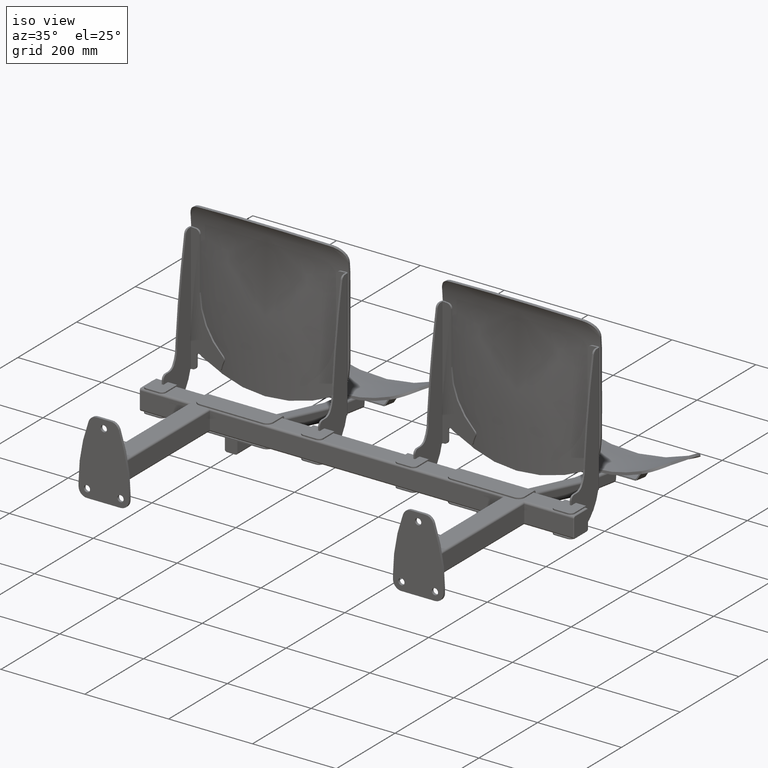
[diagram: clean part render]
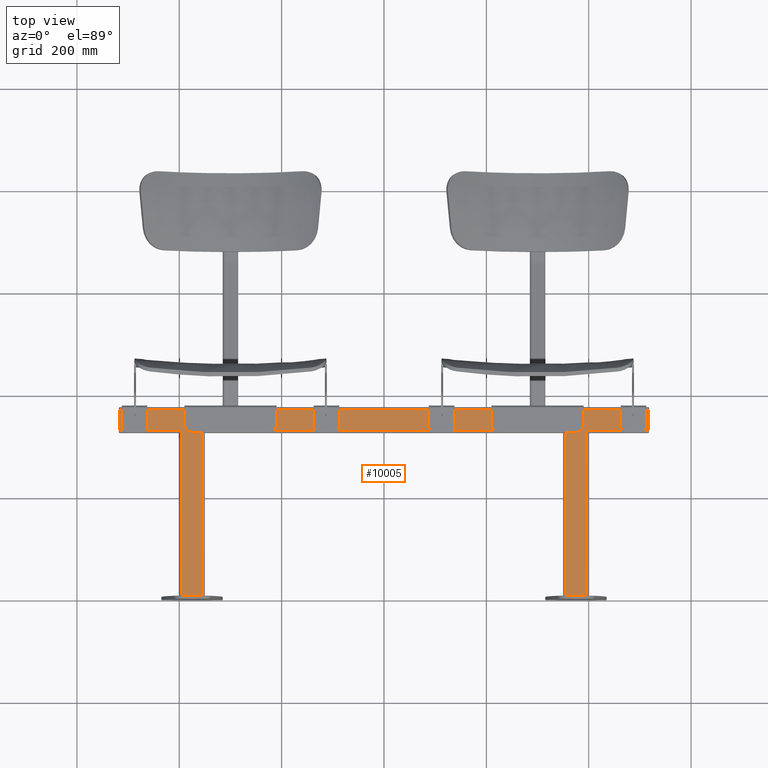
[diagram: tour spotlight — one face highlighted and labeled with its STEP entity id]
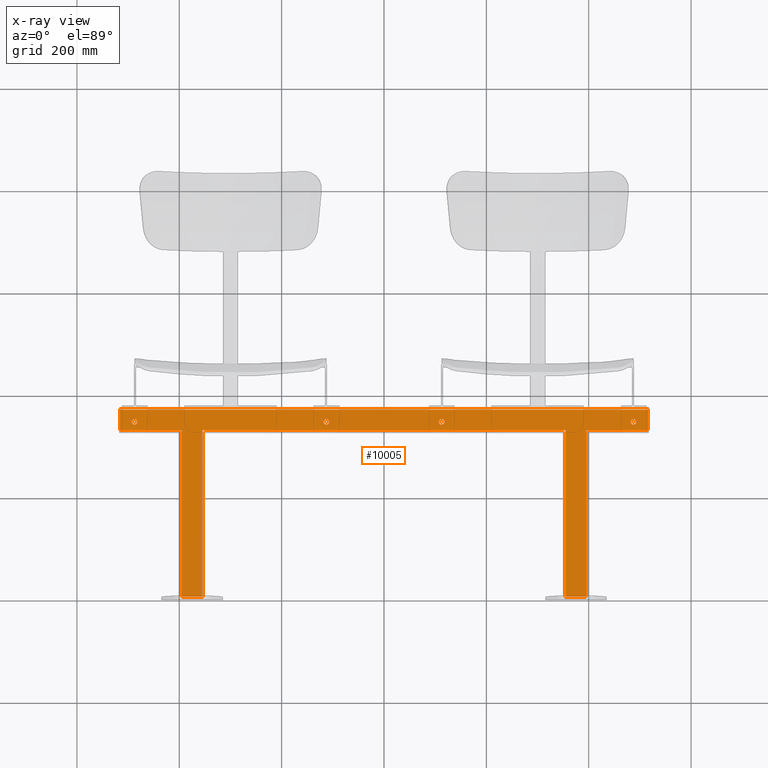
[diagram: x-ray of the same camera — body ghosted, this tour face saturated]
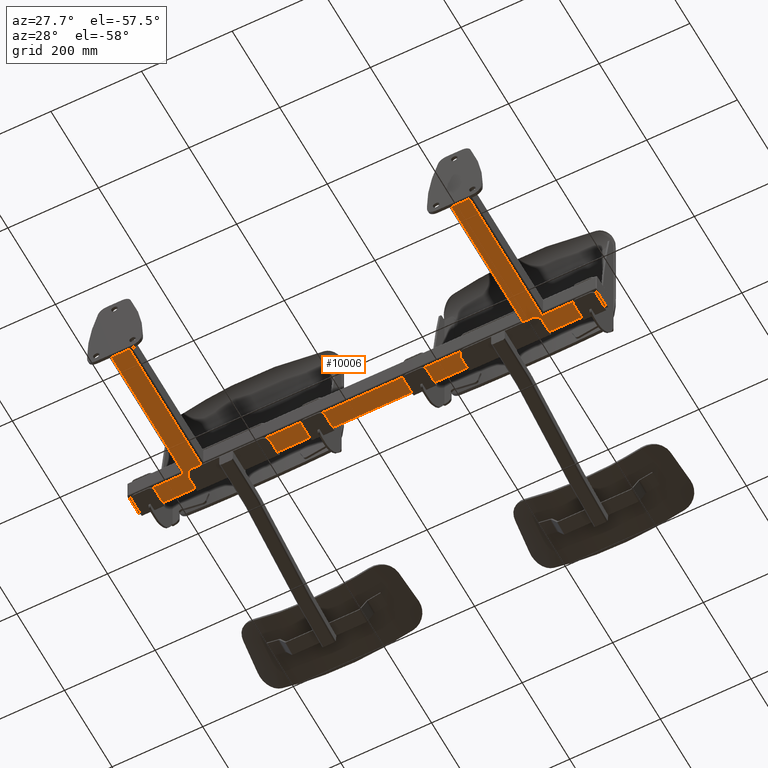
[diagram: tour spotlight — one face highlighted and labeled with its STEP entity id]
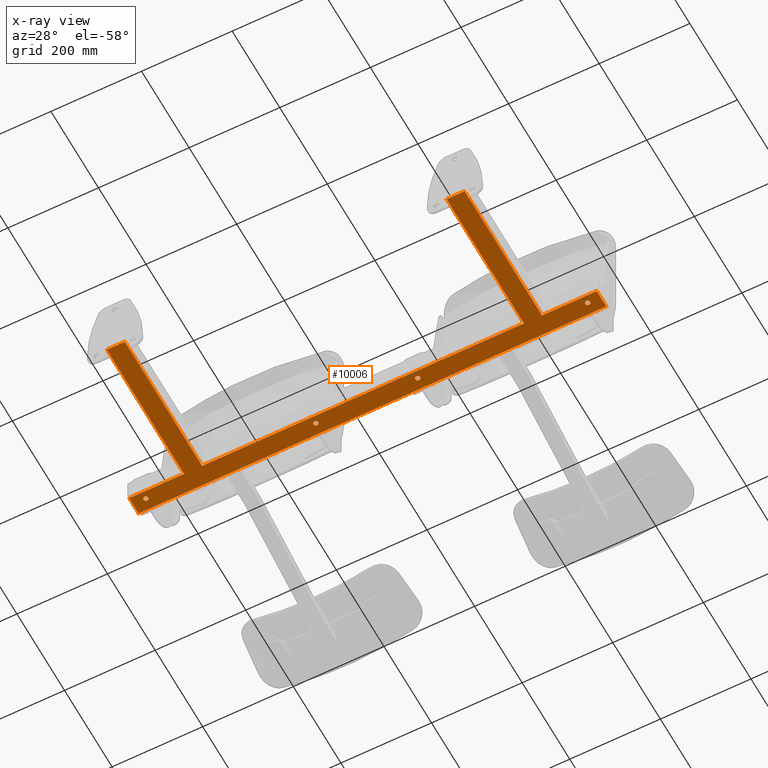
[diagram: x-ray of the same camera — body ghosted, this tour face saturated]
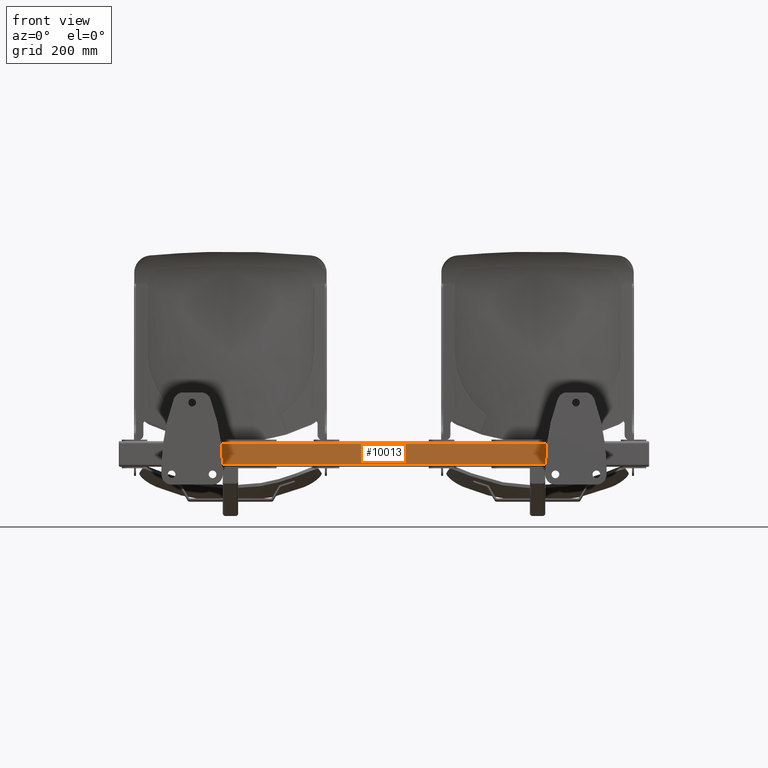
[diagram: tour spotlight — one face highlighted and labeled with its STEP entity id]
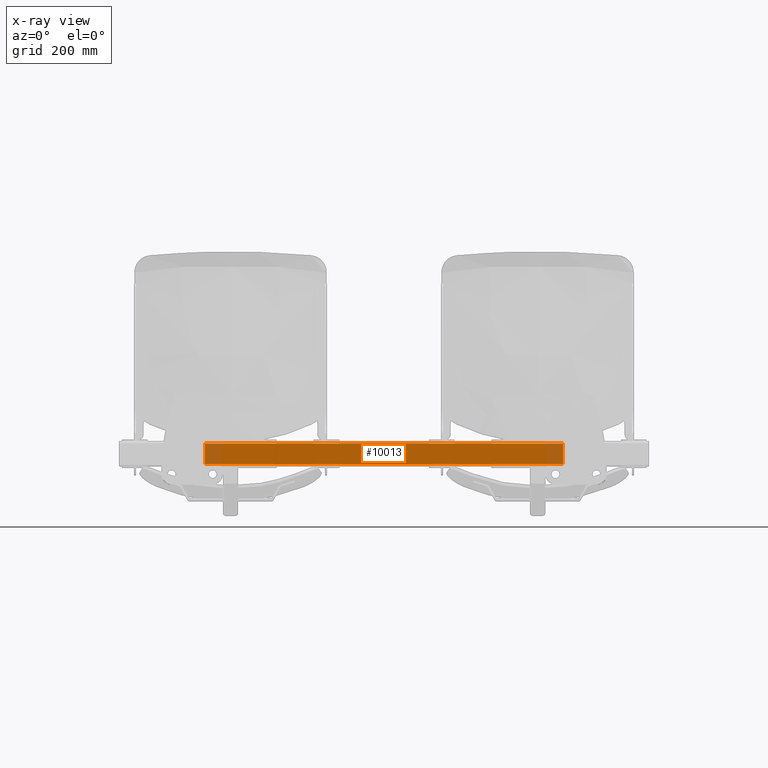
[diagram: x-ray of the same camera — body ghosted, this tour face saturated]
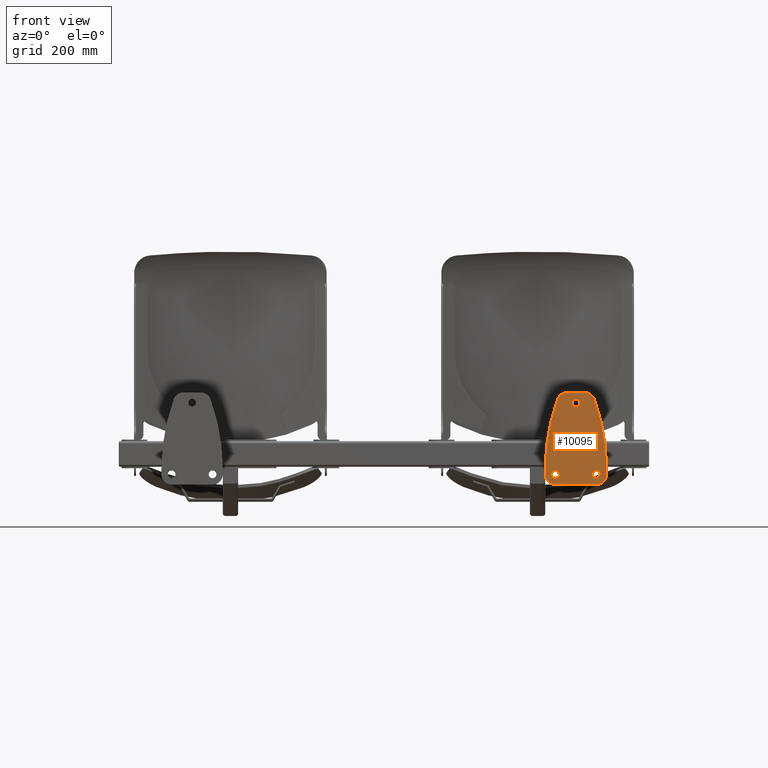
[diagram: tour spotlight — one face highlighted and labeled with its STEP entity id]
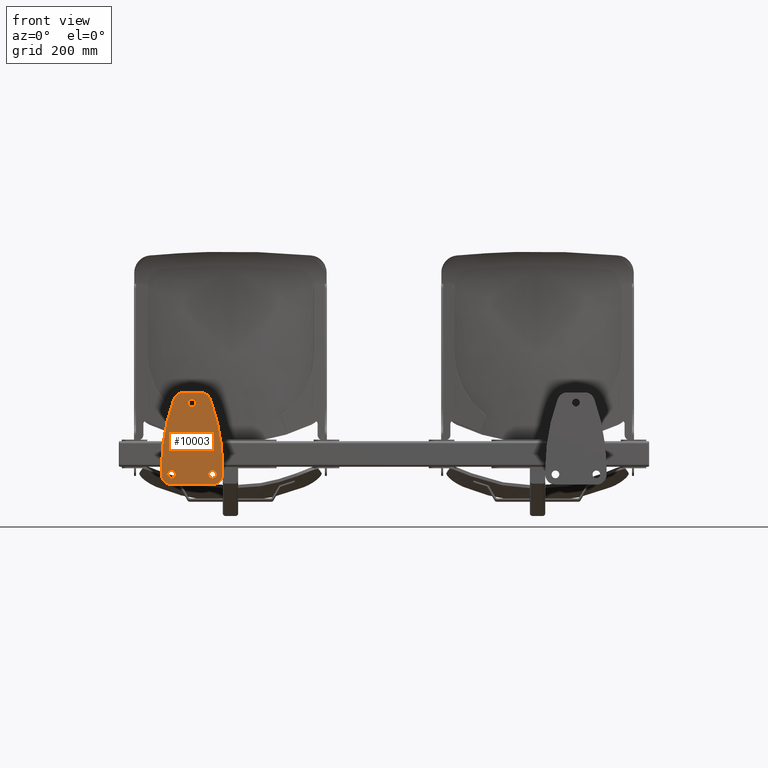
[diagram: tour spotlight — one face highlighted and labeled with its STEP entity id]
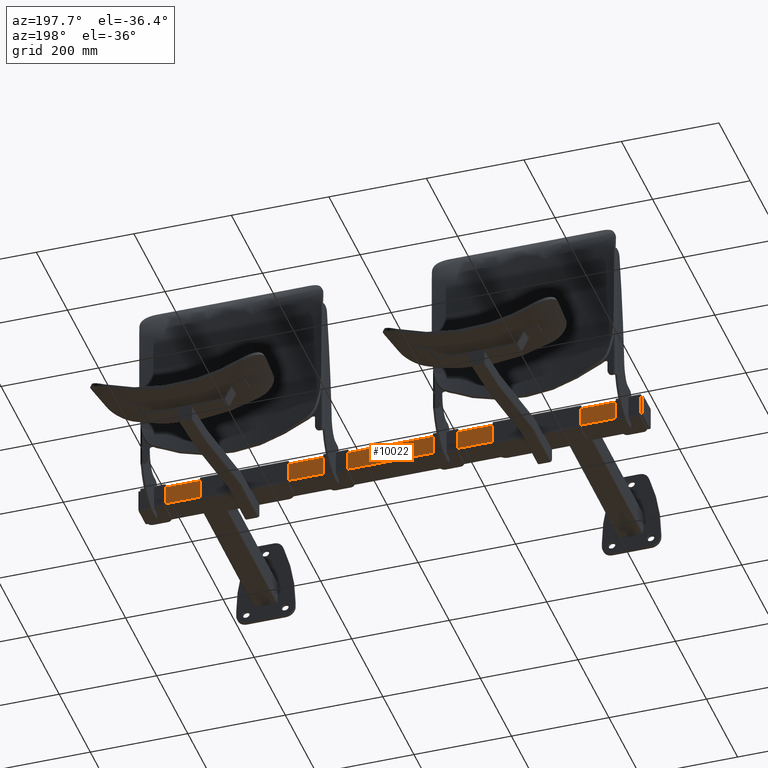
[diagram: tour spotlight — one face highlighted and labeled with its STEP entity id]
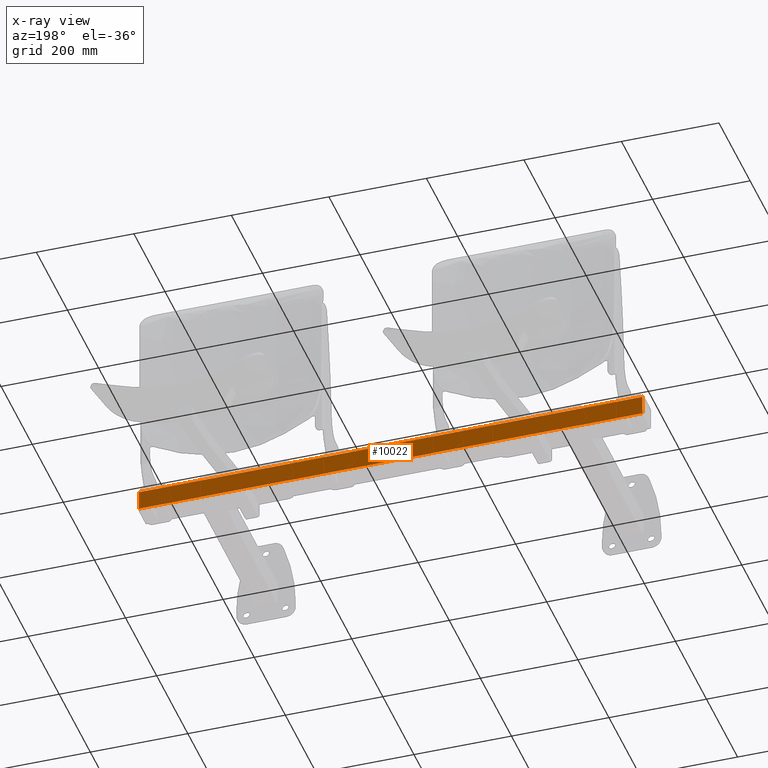
[diagram: x-ray of the same camera — body ghosted, this tour face saturated]
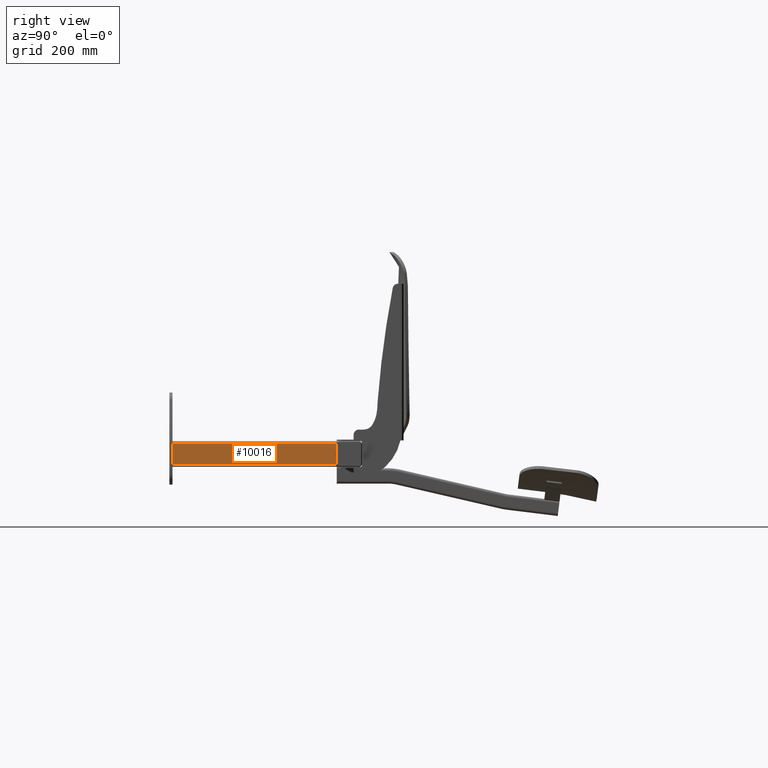
[diagram: tour spotlight — one face highlighted and labeled with its STEP entity id]
A machine part: a face-by-face anatomy tour. The part has 506 B-rep faces; the first image is the clean iso view, then the 7 largest visible faces are spotlighted one at a time (largest first), each with its STEP entity span.

Face 1 — top view, entity #10005. An x-ray twin of the same camera follows (body ghosted, this face saturated) — the face is partly hidden behind the body. In plain terms, the highlighted planar face has unit normal (0, 0, -1).
Definition (entity closure, byte-faithful):
#1791 = DIRECTION ( 'NONE',  ( 0.0000000000000000000, 0.0000000000000000000, -1.000000000000000000 ) ) ;
#1794 = PLANE ( 'NONE',  #9917 ) ;
#1795 = CARTESIAN_POINT ( 'NONE',  ( 0.0000000000000000000, 0.0000000000000000000, 25.00000000000000000 ) ) ;
#1797 = DIRECTION ( 'NONE',  ( -1.000000000000000000, 0.0000000000000000000, -0.0000000000000000000 ) ) ;
#3742 = FACE_BOUND ( 'NONE', #13498, .T. ) ;
#3769 = FACE_OUTER_BOUND ( 'NONE', #13495, .T. ) ;
#3770 = FACE_BOUND ( 'NONE', #13499, .T. ) ;
#3771 = FACE_BOUND ( 'NONE', #13475, .T. ) ;
#3772 = FACE_BOUND ( 'NONE', #13497, .T. ) ;
#3820 = DIRECTION ( 'NONE',  ( 1.000000000000000000, 0.0000000000000000000, 0.0000000000000000000 ) ) ;
#3827 = CARTESIAN_POINT ( 'NONE',  ( 487.4999999999998300, 347.0000000000000000, 25.00000000000000000 ) ) ;
#3828 = DIRECTION ( 'NONE',  ( 0.0000000000000000000, 0.0000000000000000000, 1.000000000000000000 ) ) ;
#3829 = DIRECTION ( 'NONE',  ( -1.000000000000000000, 0.0000000000000000000, 0.0000000000000000000 ) ) ;
#3830 = CARTESIAN_POINT ( 'NONE',  ( 516.0000000000000000, 0.0000000000000000000, 25.00000000000000000 ) ) ;
#3831 = CARTESIAN_POINT ( 'NONE',  ( 0.0000000000000000000, 331.0000000000000000, 25.00000000000000000 ) ) ;
#3832 = CARTESIAN_POINT ( 'NONE',  ( -487.4999999999998300, 347.0000000000000000, 25.00000000000000000 ) ) ;
#3833 = DIRECTION ( 'NONE',  ( 0.0000000000000000000, 0.0000000000000000000, 1.000000000000000000 ) ) ;
#3834 = DIRECTION ( 'NONE',  ( 1.000000000000000000, 0.0000000000000000000, 0.0000000000000000000 ) ) ;
#3836 = DIRECTION ( 'NONE',  ( 0.0000000000000000000, 1.000000000000000000, 0.0000000000000000000 ) ) ;
#3837 = CARTESIAN_POINT ( 'NONE',  ( 0.0000000000000000000, 371.0000000000000000, 25.00000000000000000 ) ) ;
#3838 = DIRECTION ( 'NONE',  ( -1.000000000000000000, 0.0000000000000000000, 0.0000000000000000000 ) ) ;
#3839 = CARTESIAN_POINT ( 'NONE',  ( -516.0000000000000000, 0.0000000000000000000, 25.00000000000000000 ) ) ;
#3840 = DIRECTION ( 'NONE',  ( 0.0000000000000000000, -1.000000000000000000, 0.0000000000000000000 ) ) ;
#3841 = CARTESIAN_POINT ( 'NONE',  ( 0.0000000000000000000, 331.0000000000000000, 25.00000000000000000 ) ) ;
#3842 = DIRECTION ( 'NONE',  ( 1.000000000000000000, 0.0000000000000000000, 0.0000000000000000000 ) ) ;
#3843 = CARTESIAN_POINT ( 'NONE',  ( -395.0000000000000000, -6.852157730108388000E-014, 25.00000000000000000 ) ) ;
#3844 = DIRECTION ( 'NONE',  ( 1.734723475976807100E-016, -1.000000000000000000, 0.0000000000000000000 ) ) ;
#3845 = CARTESIAN_POINT ( 'NONE',  ( -355.0000000000000000, 6.158268339717665200E-014, 25.00000000000000000 ) ) ;
#3846 = DIRECTION ( 'NONE',  ( 1.734723475976807100E-016, 1.000000000000000000, 0.0000000000000000000 ) ) ;
#4239 = CARTESIAN_POINT ( 'NONE',  ( 395.0000000000000000, 6.000000000000000000, 25.00000000000000000 ) ) ;
#4241 = CARTESIAN_POINT ( 'NONE',  ( -107.2499999999998200, 347.0000000000000000, 25.00000000000000000 ) ) ;
#4260 = CARTESIAN_POINT ( 'NONE',  ( -354.9999999999999400, 331.0000000000000000, 25.00000000000000000 ) ) ;
#5409 = EDGE_CURVE ( 'NONE', #13108, #13093, #13157, .T. ) ;
#5830 = CARTESIAN_POINT ( 'NONE',  ( 0.0000000000000000000, 331.0000000000000000, 25.00000000000000000 ) ) ;
#5832 = DIRECTION ( 'NONE',  ( 1.000000000000000000, 0.0000000000000000000, 0.0000000000000000000 ) ) ;
#5834 = CARTESIAN_POINT ( 'NONE',  ( 355.0000000000000000, 6.158268339717665200E-014, 25.00000000000000000 ) ) ;
#5837 = DIRECTION ( 'NONE',  ( 1.734723475976807100E-016, -1.000000000000000000, 0.0000000000000000000 ) ) ;
#5839 = CARTESIAN_POINT ( 'NONE',  ( 350.0000000000000000, 6.000000000000000000, 25.00000000000000000 ) ) ;
#5842 = DIRECTION ( 'NONE',  ( 1.000000000000000000, 0.0000000000000000000, 0.0000000000000000000 ) ) ;
#5844 = CARTESIAN_POINT ( 'NONE',  ( 395.0000000000000000, -6.852157730108388000E-014, 25.00000000000000000 ) ) ;
#5847 = DIRECTION ( 'NONE',  ( 1.734723475976807100E-016, 1.000000000000000000, 0.0000000000000000000 ) ) ;
#5850 = CARTESIAN_POINT ( 'NONE',  ( -112.4999999999998300, 347.0000000000000000, 25.00000000000000000 ) ) ;
#5851 = DIRECTION ( 'NONE',  ( 0.0000000000000000000, 0.0000000000000000000, 1.000000000000000000 ) ) ;
#5853 = DIRECTION ( 'NONE',  ( 1.000000000000000000, 0.0000000000000000000, 0.0000000000000000000 ) ) ;
#5855 = CARTESIAN_POINT ( 'NONE',  ( 112.4999999999998300, 347.0000000000000000, 25.00000000000000000 ) ) ;
#5856 = DIRECTION ( 'NONE',  ( 0.0000000000000000000, 0.0000000000000000000, 1.000000000000000000 ) ) ;
#5858 = DIRECTION ( 'NONE',  ( -1.000000000000000000, 0.0000000000000000000, 0.0000000000000000000 ) ) ;
#6427 = CARTESIAN_POINT ( 'NONE',  ( 112.4999999999998300, 347.0000000000000000, 25.00000000000000000 ) ) ;
#6428 = DIRECTION ( 'NONE',  ( 0.0000000000000000000, 0.0000000000000000000, 1.000000000000000000 ) ) ;
#6429 = DIRECTION ( 'NONE',  ( -1.000000000000000000, 0.0000000000000000000, 0.0000000000000000000 ) ) ;
#7791 = EDGE_CURVE ( 'NONE', #13097, #13088, #10599, .T. ) ;
#7794 = EDGE_CURVE ( 'NONE', #13110, #13117, #10597, .T. ) ;
#7796 = EDGE_CURVE ( 'NONE', #13090, #13104, #10600, .T. ) ;
#7798 = EDGE_CURVE ( 'NONE', #13104, #13077, #10601, .T. ) ;
#7800 = EDGE_CURVE ( 'NONE', #13077, #13103, #10604, .T. ) ;
#7802 = EDGE_CURVE ( 'NONE', #13103, #13082, #10606, .T. ) ;
#7804 = EDGE_CURVE ( 'NONE', #13082, #13122, #10608, .T. ) ;
#7806 = EDGE_CURVE ( 'NONE', #13122, #13091, #10610, .T. ) ;
#7809 = EDGE_CURVE ( 'NONE', #13079, #19625, #10612, .T. ) ;
#7903 = AXIS2_PLACEMENT_3D ( 'NONE', #6427, #6428, #6429 ) ;
#8668 = AXIS2_PLACEMENT_3D ( 'NONE', #3827, #3828, #3829 ) ;
#8669 = AXIS2_PLACEMENT_3D ( 'NONE', #3832, #3833, #3834 ) ;
#8803 = EDGE_CURVE ( 'NONE', #13088, #13097, #13625, .T. ) ;
#8807 = EDGE_CURVE ( 'NONE', #13083, #19603, #13630, .T. ) ;
#8811 = EDGE_CURVE ( 'NONE', #13117, #13110, #13635, .T. ) ;
#8831 = EDGE_CURVE ( 'NONE', #13091, #13079, #13666, .T. ) ;
#8982 = EDGE_CURVE ( 'NONE', #19625, #13119, #19124, .T. ) ;
#8983 = EDGE_CURVE ( 'NONE', #13119, #13121, #19122, .T. ) ;
#8984 = EDGE_CURVE ( 'NONE', #13121, #19601, #19126, .T. ) ;
#8985 = EDGE_CURVE ( 'NONE', #19601, #13090, #19128, .T. ) ;
#8986 = EDGE_CURVE ( 'NONE', #19603, #13083, #19130, .T. ) ;
#8987 = EDGE_CURVE ( 'NONE', #13093, #13108, #19132, .T. ) ;
#9480 = CARTESIAN_POINT ( 'NONE',  ( 516.0000000000000000, 371.0000000000000000, 25.00000000000000000 ) ) ;
#9482 = CARTESIAN_POINT ( 'NONE',  ( -355.0000000000000000, 6.000000000000000000, 25.00000000000000000 ) ) ;
#9485 = CARTESIAN_POINT ( 'NONE',  ( -516.0000000000000000, 331.0000000000000000, 25.00000000000000000 ) ) ;
#9486 = CARTESIAN_POINT ( 'NONE',  ( -117.7499999999998300, 347.0000000000000000, 25.00000000000000000 ) ) ;
#9491 = CARTESIAN_POINT ( 'NONE',  ( 482.2499999999998300, 347.0000000000000000, 25.00000000000000000 ) ) ;
#9493 = CARTESIAN_POINT ( 'NONE',  ( 395.0000000000000600, 331.0000000000000000, 25.00000000000000000 ) ) ;
#9494 = CARTESIAN_POINT ( 'NONE',  ( -395.0000000000000000, 6.000000000000000000, 25.00000000000000000 ) ) ;
#9496 = CARTESIAN_POINT ( 'NONE',  ( 117.7499999999998300, 347.0000000000000000, 25.00000000000000000 ) ) ;
#9500 = CARTESIAN_POINT ( 'NONE',  ( 492.7499999999997700, 347.0000000000000000, 25.00000000000000000 ) ) ;
#9506 = CARTESIAN_POINT ( 'NONE',  ( -516.0000000000000000, 371.0000000000000000, 25.00000000000000000 ) ) ;
#9507 = CARTESIAN_POINT ( 'NONE',  ( 516.0000000000000000, 331.0000000000000000, 25.00000000000000000 ) ) ;
#9511 = CARTESIAN_POINT ( 'NONE',  ( 107.2499999999998200, 347.0000000000000000, 25.00000000000000000 ) ) ;
#9513 = CARTESIAN_POINT ( 'NONE',  ( -482.2499999999998300, 347.0000000000000000, 25.00000000000000000 ) ) ;
#9520 = CARTESIAN_POINT ( 'NONE',  ( -492.7499999999997700, 347.0000000000000000, 25.00000000000000000 ) ) ;
#9522 = CARTESIAN_POINT ( 'NONE',  ( 354.9999999999999400, 331.0000000000000000, 25.00000000000000000 ) ) ;
#9524 = CARTESIAN_POINT ( 'NONE',  ( 355.0000000000000000, 6.000000000000000000, 25.00000000000000000 ) ) ;
#9525 = CARTESIAN_POINT ( 'NONE',  ( -395.0000000000000600, 331.0000000000000000, 25.00000000000000000 ) ) ;
#9917 = AXIS2_PLACEMENT_3D ( 'NONE', #1795, #1791, #1797 ) ;
#10005 = ADVANCED_FACE ( 'NONE', ( #3742, #3772, #3769, #3771, #3770 ), #1794, .F. ) ;
#10597 = CIRCLE ( 'NONE', #8669, 5.249999999999976900 ) ;
#10599 = CIRCLE ( 'NONE', #8668, 5.249999999999976900 ) ;
#10600 = LINE ( 'NONE', #3831, #10603 ) ;
#10601 = LINE ( 'NONE', #3830, #10605 ) ;
#10603 = VECTOR ( 'NONE', #3820, 1000.000000000000000 ) ;
#10604 = LINE ( 'NONE', #3837, #10607 ) ;
#10605 = VECTOR ( 'NONE', #3836, 1000.000000000000000 ) ;
#10606 = LINE ( 'NONE', #3839, #10609 ) ;
#10607 = VECTOR ( 'NONE', #3838, 1000.000000000000000 ) ;
#10608 = LINE ( 'NONE', #3841, #10611 ) ;
#10609 = VECTOR ( 'NONE', #3840, 1000.000000000000000 ) ;
#10610 = LINE ( 'NONE', #3843, #10613 ) ;
#10611 = VECTOR ( 'NONE', #3842, 1000.000000000000000 ) ;
#10612 = LINE ( 'NONE', #3845, #10615 ) ;
#10613 = VECTOR ( 'NONE', #3844, 1000.000000000000000 ) ;
#10615 = VECTOR ( 'NONE', #3846, 1000.000000000000000 ) ;
#11863 = CARTESIAN_POINT ( 'NONE',  ( 487.4999999999998300, 347.0000000000000000, 25.00000000000000000 ) ) ;
#11864 = DIRECTION ( 'NONE',  ( 0.0000000000000000000, 0.0000000000000000000, 1.000000000000000000 ) ) ;
#11865 = DIRECTION ( 'NONE',  ( -1.000000000000000000, 0.0000000000000000000, 0.0000000000000000000 ) ) ;
#11873 = CARTESIAN_POINT ( 'NONE',  ( -112.4999999999998300, 347.0000000000000000, 25.00000000000000000 ) ) ;
#11874 = DIRECTION ( 'NONE',  ( 0.0000000000000000000, 0.0000000000000000000, 1.000000000000000000 ) ) ;
#11875 = DIRECTION ( 'NONE',  ( 1.000000000000000000, 0.0000000000000000000, 0.0000000000000000000 ) ) ;
#11893 = CARTESIAN_POINT ( 'NONE',  ( -487.4999999999998300, 347.0000000000000000, 25.00000000000000000 ) ) ;
#11895 = DIRECTION ( 'NONE',  ( 0.0000000000000000000, 0.0000000000000000000, 1.000000000000000000 ) ) ;
#11897 = DIRECTION ( 'NONE',  ( 1.000000000000000000, 0.0000000000000000000, 0.0000000000000000000 ) ) ;
#11991 = CARTESIAN_POINT ( 'NONE',  ( -400.0000000000000000, 6.000000000000000000, 25.00000000000000000 ) ) ;
#11993 = DIRECTION ( 'NONE',  ( 1.000000000000000000, 0.0000000000000000000, 0.0000000000000000000 ) ) ;
#12793 = ORIENTED_EDGE ( 'NONE', *, *, #8831, .T. ) ;
#12794 = ORIENTED_EDGE ( 'NONE', *, *, #7809, .T. ) ;
#12795 = ORIENTED_EDGE ( 'NONE', *, *, #8982, .T. ) ;
#12796 = ORIENTED_EDGE ( 'NONE', *, *, #8983, .T. ) ;
#12797 = ORIENTED_EDGE ( 'NONE', *, *, #8984, .T. ) ;
#12798 = ORIENTED_EDGE ( 'NONE', *, *, #8985, .T. ) ;
#12799 = ORIENTED_EDGE ( 'NONE', *, *, #8807, .F. ) ;
#12800 = ORIENTED_EDGE ( 'NONE', *, *, #8986, .F. ) ;
#12801 = ORIENTED_EDGE ( 'NONE', *, *, #5409, .F. ) ;
#12802 = ORIENTED_EDGE ( 'NONE', *, *, #8987, .F. ) ;
#13077 = VERTEX_POINT ( 'NONE', #9480 ) ;
#13079 = VERTEX_POINT ( 'NONE', #9482 ) ;
#13082 = VERTEX_POINT ( 'NONE', #9485 ) ;
#13083 = VERTEX_POINT ( 'NONE', #9486 ) ;
#13088 = VERTEX_POINT ( 'NONE', #9491 ) ;
#13090 = VERTEX_POINT ( 'NONE', #9493 ) ;
#13091 = VERTEX_POINT ( 'NONE', #9494 ) ;
#13093 = VERTEX_POINT ( 'NONE', #9496 ) ;
#13097 = VERTEX_POINT ( 'NONE', #9500 ) ;
#13103 = VERTEX_POINT ( 'NONE', #9506 ) ;
#13104 = VERTEX_POINT ( 'NONE', #9507 ) ;
#13108 = VERTEX_POINT ( 'NONE', #9511 ) ;
#13110 = VERTEX_POINT ( 'NONE', #9513 ) ;
#13117 = VERTEX_POINT ( 'NONE', #9520 ) ;
#13119 = VERTEX_POINT ( 'NONE', #9522 ) ;
#13121 = VERTEX_POINT ( 'NONE', #9524 ) ;
#13122 = VERTEX_POINT ( 'NONE', #9525 ) ;
#13157 = CIRCLE ( 'NONE', #7903, 5.250000000000004400 ) ;
#13475 = EDGE_LOOP ( 'NONE', ( #12799, #12800 ) ) ;
#13495 = EDGE_LOOP ( 'NONE', ( #17526, #17527, #17528, #17529, #17530, #17531, #12793, #12794, #12795, #12796, #12797, #12798 ) ) ;
#13497 = EDGE_LOOP ( 'NONE', ( #17524, #17525 ) ) ;
#13498 = EDGE_LOOP ( 'NONE', ( #17522, #17523 ) ) ;
#13499 = EDGE_LOOP ( 'NONE', ( #12801, #12802 ) ) ;
#13625 = CIRCLE ( 'NONE', #18355, 5.249999999999976900 ) ;
#13630 = CIRCLE ( 'NONE', #18357, 5.250000000000004400 ) ;
#13635 = CIRCLE ( 'NONE', #18359, 5.249999999999976900 ) ;
#13666 = LINE ( 'NONE', #11991, #13668 ) ;
#13668 = VECTOR ( 'NONE', #11993, 1000.000000000000000 ) ;
#17522 = ORIENTED_EDGE ( 'NONE', *, *, #8803, .F. ) ;
#17523 = ORIENTED_EDGE ( 'NONE', *, *, #7791, .F. ) ;
#17524 = ORIENTED_EDGE ( 'NONE', *, *, #8811, .F. ) ;
#17525 = ORIENTED_EDGE ( 'NONE', *, *, #7794, .F. ) ;
#17526 = ORIENTED_EDGE ( 'NONE', *, *, #7796, .T. ) ;
#17527 = ORIENTED_EDGE ( 'NONE', *, *, #7798, .T. ) ;
#17528 = ORIENTED_EDGE ( 'NONE', *, *, #7800, .T. ) ;
#17529 = ORIENTED_EDGE ( 'NONE', *, *, #7802, .T. ) ;
#17530 = ORIENTED_EDGE ( 'NONE', *, *, #7804, .T. ) ;
#17531 = ORIENTED_EDGE ( 'NONE', *, *, #7806, .T. ) ;
#18355 = AXIS2_PLACEMENT_3D ( 'NONE', #11863, #11864, #11865 ) ;
#18357 = AXIS2_PLACEMENT_3D ( 'NONE', #11873, #11874, #11875 ) ;
#18359 = AXIS2_PLACEMENT_3D ( 'NONE', #11893, #11895, #11897 ) ;
#18404 = AXIS2_PLACEMENT_3D ( 'NONE', #5850, #5851, #5853 ) ;
#18405 = AXIS2_PLACEMENT_3D ( 'NONE', #5855, #5856, #5858 ) ;
#19122 = LINE ( 'NONE', #5834, #19127 ) ;
#19124 = LINE ( 'NONE', #5830, #19125 ) ;
#19125 = VECTOR ( 'NONE', #5832, 1000.000000000000000 ) ;
#19126 = LINE ( 'NONE', #5839, #19129 ) ;
#19127 = VECTOR ( 'NONE', #5837, 1000.000000000000000 ) ;
#19128 = LINE ( 'NONE', #5844, #19131 ) ;
#19129 = VECTOR ( 'NONE', #5842, 1000.000000000000000 ) ;
#19130 = CIRCLE ( 'NONE', #18404, 5.250000000000004400 ) ;
#19131 = VECTOR ( 'NONE', #5847, 1000.000000000000000 ) ;
#19132 = CIRCLE ( 'NONE', #18405, 5.250000000000004400 ) ;
#19601 = VERTEX_POINT ( 'NONE', #4239 ) ;
#19603 = VERTEX_POINT ( 'NONE', #4241 ) ;
#19625 = VERTEX_POINT ( 'NONE', #4260 ) ;

Face 2 — auxiliary view, entity #10006. An x-ray twin of the same camera follows (body ghosted, this face saturated) — the face is partly hidden behind the body. In plain terms, the highlighted planar face has unit normal (0, 0, -1).
Definition (entity closure, byte-faithful):
#1792 = DIRECTION ( 'NONE',  ( 0.0000000000000000000, 0.0000000000000000000, -1.000000000000000000 ) ) ;
#1798 = PLANE ( 'NONE',  #9920 ) ;
#1799 = CARTESIAN_POINT ( 'NONE',  ( 0.0000000000000000000, 0.0000000000000000000, -25.00000000000000000 ) ) ;
#1802 = DIRECTION ( 'NONE',  ( -1.000000000000000000, 0.0000000000000000000, -0.0000000000000000000 ) ) ;
#3773 = FACE_BOUND ( 'NONE', #9062, .T. ) ;
#3774 = FACE_OUTER_BOUND ( 'NONE', #9060, .T. ) ;
#3775 = FACE_BOUND ( 'NONE', #13500, .T. ) ;
#3776 = FACE_BOUND ( 'NONE', #9064, .T. ) ;
#3777 = FACE_BOUND ( 'NONE', #13494, .T. ) ;
#4240 = CARTESIAN_POINT ( 'NONE',  ( -355.0000000000000000, 6.000000000000000000, -25.00000000000000000 ) ) ;
#4246 = CARTESIAN_POINT ( 'NONE',  ( 355.0000000000000000, 6.000000000000000000, -25.00000000000000000 ) ) ;
#4247 = CARTESIAN_POINT ( 'NONE',  ( -354.9999999999999400, 331.0000000000000000, -25.00000000000000000 ) ) ;
#4249 = CARTESIAN_POINT ( 'NONE',  ( -516.0000000000000000, 371.0000000000000000, -25.00000000000000000 ) ) ;
#5135 = CARTESIAN_POINT ( 'NONE',  ( 487.4999999999998300, 347.0000000000000000, -25.00000000000000000 ) ) ;
#5136 = DIRECTION ( 'NONE',  ( 0.0000000000000000000, 0.0000000000000000000, 1.000000000000000000 ) ) ;
#5137 = DIRECTION ( 'NONE',  ( -1.000000000000000000, 0.0000000000000000000, 0.0000000000000000000 ) ) ;
#5138 = CARTESIAN_POINT ( 'NONE',  ( 516.0000000000000000, 331.0000000000000000, -25.00000000000000000 ) ) ;
#5139 = CARTESIAN_POINT ( 'NONE',  ( -487.4999999999998300, 347.0000000000000000, -25.00000000000000000 ) ) ;
#5140 = DIRECTION ( 'NONE',  ( 0.0000000000000000000, 0.0000000000000000000, 1.000000000000000000 ) ) ;
#5141 = DIRECTION ( 'NONE',  ( 1.000000000000000000, 0.0000000000000000000, 0.0000000000000000000 ) ) ;
#5142 = DIRECTION ( 'NONE',  ( -0.0000000000000000000, -1.000000000000000000, -0.0000000000000000000 ) ) ;
#5143 = CARTESIAN_POINT ( 'NONE',  ( 400.0000000000000600, 331.0000000000000000, -25.00000000000000000 ) ) ;
#5144 = DIRECTION ( 'NONE',  ( -1.000000000000000000, -0.0000000000000000000, -0.0000000000000000000 ) ) ;
#5145 = CARTESIAN_POINT ( 'NONE',  ( 395.0000000000000000, 6.000000000000000900, -25.00000000000000000 ) ) ;
#5146 = DIRECTION ( 'NONE',  ( -1.734723475976807100E-016, -1.000000000000000000, -0.0000000000000000000 ) ) ;
#5147 = CARTESIAN_POINT ( 'NONE',  ( 350.0000000000000000, 6.000000000000000000, -25.00000000000000000 ) ) ;
#5148 = DIRECTION ( 'NONE',  ( 1.000000000000000000, 0.0000000000000000000, 0.0000000000000000000 ) ) ;
#5149 = CARTESIAN_POINT ( 'NONE',  ( 354.9999999999999400, 326.0000000000000000, -25.00000000000000000 ) ) ;
#5150 = DIRECTION ( 'NONE',  ( -1.734723475976807100E-016, 1.000000000000000000, -0.0000000000000000000 ) ) ;
#5151 = CARTESIAN_POINT ( 'NONE',  ( -349.9999999999999400, 331.0000000000000000, -25.00000000000000000 ) ) ;
#5152 = DIRECTION ( 'NONE',  ( -1.000000000000000000, -0.0000000000000000000, -0.0000000000000000000 ) ) ;
#5153 = CARTESIAN_POINT ( 'NONE',  ( -355.0000000000000000, 6.000000000000000900, -25.00000000000000000 ) ) ;
#5154 = DIRECTION ( 'NONE',  ( -1.734723475976807100E-016, -1.000000000000000000, -0.0000000000000000000 ) ) ;
#5155 = CARTESIAN_POINT ( 'NONE',  ( -395.0000000000000600, 326.0000000000000000, -25.00000000000000000 ) ) ;
#5156 = DIRECTION ( 'NONE',  ( -1.734723475976807100E-016, 1.000000000000000000, -0.0000000000000000000 ) ) ;
#5157 = CARTESIAN_POINT ( 'NONE',  ( -518.0000000000000000, 331.0000000000000000, -25.00000000000000000 ) ) ;
#5158 = DIRECTION ( 'NONE',  ( -1.000000000000000000, -0.0000000000000000000, -0.0000000000000000000 ) ) ;
#5159 = CARTESIAN_POINT ( 'NONE',  ( -516.0000000000000000, 371.0000000000000000, -25.00000000000000000 ) ) ;
#5160 = DIRECTION ( 'NONE',  ( -0.0000000000000000000, 1.000000000000000000, -0.0000000000000000000 ) ) ;
#5163 = CARTESIAN_POINT ( 'NONE',  ( -112.4999999999998300, 347.0000000000000000, -25.00000000000000000 ) ) ;
#5164 = DIRECTION ( 'NONE',  ( 0.0000000000000000000, 0.0000000000000000000, 1.000000000000000000 ) ) ;
#5165 = DIRECTION ( 'NONE',  ( 1.000000000000000000, 0.0000000000000000000, 0.0000000000000000000 ) ) ;
#5168 = CARTESIAN_POINT ( 'NONE',  ( 112.4999999999998300, 347.0000000000000000, -25.00000000000000000 ) ) ;
#5169 = DIRECTION ( 'NONE',  ( 0.0000000000000000000, 0.0000000000000000000, 1.000000000000000000 ) ) ;
#5170 = DIRECTION ( 'NONE',  ( -1.000000000000000000, 0.0000000000000000000, 0.0000000000000000000 ) ) ;
#5411 = EDGE_CURVE ( 'NONE', #12524, #13089, #13164, .T. ) ;
#5860 = CARTESIAN_POINT ( 'NONE',  ( 518.0000000000000000, 371.0000000000000000, -25.00000000000000000 ) ) ;
#5861 = DIRECTION ( 'NONE',  ( 1.000000000000000000, -0.0000000000000000000, -0.0000000000000000000 ) ) ;
#6432 = CARTESIAN_POINT ( 'NONE',  ( 112.4999999999998300, 347.0000000000000000, -25.00000000000000000 ) ) ;
#6433 = DIRECTION ( 'NONE',  ( 0.0000000000000000000, 0.0000000000000000000, 1.000000000000000000 ) ) ;
#6434 = DIRECTION ( 'NONE',  ( -1.000000000000000000, 0.0000000000000000000, 0.0000000000000000000 ) ) ;
#7905 = AXIS2_PLACEMENT_3D ( 'NONE', #6432, #6433, #6434 ) ;
#8805 = EDGE_CURVE ( 'NONE', #13114, #13065, #13627, .T. ) ;
#8809 = EDGE_CURVE ( 'NONE', #13120, #13111, #13633, .T. ) ;
#8813 = EDGE_CURVE ( 'NONE', #13071, #13112, #13639, .T. ) ;
#8835 = EDGE_CURVE ( 'NONE', #13101, #19602, #13672, .T. ) ;
#8988 = EDGE_CURVE ( 'NONE', #13065, #13114, #19133, .T. ) ;
#8989 = EDGE_CURVE ( 'NONE', #13112, #13071, #19134, .T. ) ;
#8990 = EDGE_CURVE ( 'NONE', #19614, #13069, #19135, .T. ) ;
#8991 = EDGE_CURVE ( 'NONE', #13069, #13073, #19114, .T. ) ;
#8992 = EDGE_CURVE ( 'NONE', #13073, #13099, #19138, .T. ) ;
#8993 = EDGE_CURVE ( 'NONE', #13099, #13107, #19140, .T. ) ;
#8994 = EDGE_CURVE ( 'NONE', #19611, #13107, #19142, .T. ) ;
#8995 = EDGE_CURVE ( 'NONE', #19611, #13105, #19144, .T. ) ;
#8996 = EDGE_CURVE ( 'NONE', #13105, #19612, #19146, .T. ) ;
#8997 = EDGE_CURVE ( 'NONE', #19612, #19602, #19148, .T. ) ;
#8998 = EDGE_CURVE ( 'NONE', #13101, #13106, #19150, .T. ) ;
#8999 = EDGE_CURVE ( 'NONE', #13106, #13070, #19152, .T. ) ;
#9000 = EDGE_CURVE ( 'NONE', #13070, #19614, #19154, .T. ) ;
#9001 = EDGE_CURVE ( 'NONE', #13111, #13120, #19156, .T. ) ;
#9002 = EDGE_CURVE ( 'NONE', #13089, #12524, #19158, .T. ) ;
#9060 = EDGE_LOOP ( 'NONE', ( #12807, #12808, #12809, #12810, #12811, #12812, #12813, #12814, #12815, #12816, #12817, #12818 ) ) ;
#9062 = EDGE_LOOP ( 'NONE', ( #12803, #12804 ) ) ;
#9064 = EDGE_LOOP ( 'NONE', ( #12819, #12820 ) ) ;
#9384 = CARTESIAN_POINT ( 'NONE',  ( 107.2499999999998200, 347.0000000000000000, -25.00000000000000000 ) ) ;
#9468 = CARTESIAN_POINT ( 'NONE',  ( -492.7499999999997700, 347.0000000000000000, -25.00000000000000000 ) ) ;
#9469 = CARTESIAN_POINT ( 'NONE',  ( 516.0000000000000000, 331.0000000000000000, -25.00000000000000000 ) ) ;
#9470 = CARTESIAN_POINT ( 'NONE',  ( 492.7499999999997700, 347.0000000000000000, -25.00000000000000000 ) ) ;
#9472 = CARTESIAN_POINT ( 'NONE',  ( 516.0000000000000000, 371.0000000000000000, -25.00000000000000000 ) ) ;
#9475 = CARTESIAN_POINT ( 'NONE',  ( -516.0000000000000000, 331.0000000000000000, -25.00000000000000000 ) ) ;
#9492 = CARTESIAN_POINT ( 'NONE',  ( 117.7499999999998300, 347.0000000000000000, -25.00000000000000000 ) ) ;
#9502 = CARTESIAN_POINT ( 'NONE',  ( 395.0000000000000600, 331.0000000000000000, -25.00000000000000000 ) ) ;
#9504 = CARTESIAN_POINT ( 'NONE',  ( -395.0000000000000000, 6.000000000000000000, -25.00000000000000000 ) ) ;
#9508 = CARTESIAN_POINT ( 'NONE',  ( 354.9999999999999400, 331.0000000000000000, -25.00000000000000000 ) ) ;
#9509 = CARTESIAN_POINT ( 'NONE',  ( -395.0000000000000600, 331.0000000000000000, -25.00000000000000000 ) ) ;
#9510 = CARTESIAN_POINT ( 'NONE',  ( 395.0000000000000000, 6.000000000000000000, -25.00000000000000000 ) ) ;
#9514 = CARTESIAN_POINT ( 'NONE',  ( -107.2499999999998200, 347.0000000000000000, -25.00000000000000000 ) ) ;
#9515 = CARTESIAN_POINT ( 'NONE',  ( -482.2499999999998300, 347.0000000000000000, -25.00000000000000000 ) ) ;
#9517 = CARTESIAN_POINT ( 'NONE',  ( 482.2499999999998300, 347.0000000000000000, -25.00000000000000000 ) ) ;
#9523 = CARTESIAN_POINT ( 'NONE',  ( -117.7499999999998300, 347.0000000000000000, -25.00000000000000000 ) ) ;
#9920 = AXIS2_PLACEMENT_3D ( 'NONE', #1799, #1792, #1802 ) ;
#10006 = ADVANCED_FACE ( 'NONE', ( #3773, #3777, #3774, #3776, #3775 ), #1798, .T. ) ;
#11868 = CARTESIAN_POINT ( 'NONE',  ( 487.4999999999998300, 347.0000000000000000, -25.00000000000000000 ) ) ;
#11869 = DIRECTION ( 'NONE',  ( 0.0000000000000000000, 0.0000000000000000000, 1.000000000000000000 ) ) ;
#11870 = DIRECTION ( 'NONE',  ( -1.000000000000000000, 0.0000000000000000000, 0.0000000000000000000 ) ) ;
#11881 = CARTESIAN_POINT ( 'NONE',  ( -112.4999999999998300, 347.0000000000000000, -25.00000000000000000 ) ) ;
#11883 = DIRECTION ( 'NONE',  ( 0.0000000000000000000, 0.0000000000000000000, 1.000000000000000000 ) ) ;
#11884 = DIRECTION ( 'NONE',  ( 1.000000000000000000, 0.0000000000000000000, 0.0000000000000000000 ) ) ;
#11905 = CARTESIAN_POINT ( 'NONE',  ( -487.4999999999998300, 347.0000000000000000, -25.00000000000000000 ) ) ;
#11907 = DIRECTION ( 'NONE',  ( 0.0000000000000000000, 0.0000000000000000000, 1.000000000000000000 ) ) ;
#11909 = DIRECTION ( 'NONE',  ( 1.000000000000000000, 0.0000000000000000000, 0.0000000000000000000 ) ) ;
#12010 = CARTESIAN_POINT ( 'NONE',  ( -400.0000000000000000, 6.000000000000000000, -25.00000000000000000 ) ) ;
#12013 = DIRECTION ( 'NONE',  ( 1.000000000000000000, 0.0000000000000000000, 0.0000000000000000000 ) ) ;
#12524 = VERTEX_POINT ( 'NONE', #9384 ) ;
#12803 = ORIENTED_EDGE ( 'NONE', *, *, #8805, .T. ) ;
#12804 = ORIENTED_EDGE ( 'NONE', *, *, #8988, .T. ) ;
#12805 = ORIENTED_EDGE ( 'NONE', *, *, #8813, .T. ) ;
#12806 = ORIENTED_EDGE ( 'NONE', *, *, #8989, .T. ) ;
#12807 = ORIENTED_EDGE ( 'NONE', *, *, #8990, .T. ) ;
#12808 = ORIENTED_EDGE ( 'NONE', *, *, #8991, .T. ) ;
#12809 = ORIENTED_EDGE ( 'NONE', *, *, #8992, .T. ) ;
#12810 = ORIENTED_EDGE ( 'NONE', *, *, #8993, .T. ) ;
#12811 = ORIENTED_EDGE ( 'NONE', *, *, #8994, .F. ) ;
#12812 = ORIENTED_EDGE ( 'NONE', *, *, #8995, .T. ) ;
#12813 = ORIENTED_EDGE ( 'NONE', *, *, #8996, .T. ) ;
#12814 = ORIENTED_EDGE ( 'NONE', *, *, #8997, .T. ) ;
#12815 = ORIENTED_EDGE ( 'NONE', *, *, #8835, .F. ) ;
#12816 = ORIENTED_EDGE ( 'NONE', *, *, #8998, .T. ) ;
#12817 = ORIENTED_EDGE ( 'NONE', *, *, #8999, .T. ) ;
#12818 = ORIENTED_EDGE ( 'NONE', *, *, #9000, .T. ) ;
#12819 = ORIENTED_EDGE ( 'NONE', *, *, #8809, .T. ) ;
#12820 = ORIENTED_EDGE ( 'NONE', *, *, #9001, .T. ) ;
#12821 = ORIENTED_EDGE ( 'NONE', *, *, #5411, .T. ) ;
#12822 = ORIENTED_EDGE ( 'NONE', *, *, #9002, .T. ) ;
#13065 = VERTEX_POINT ( 'NONE', #9470 ) ;
#13069 = VERTEX_POINT ( 'NONE', #9472 ) ;
#13070 = VERTEX_POINT ( 'NONE', #9475 ) ;
#13071 = VERTEX_POINT ( 'NONE', #9468 ) ;
#13073 = VERTEX_POINT ( 'NONE', #9469 ) ;
#13089 = VERTEX_POINT ( 'NONE', #9492 ) ;
#13099 = VERTEX_POINT ( 'NONE', #9502 ) ;
#13101 = VERTEX_POINT ( 'NONE', #9504 ) ;
#13105 = VERTEX_POINT ( 'NONE', #9508 ) ;
#13106 = VERTEX_POINT ( 'NONE', #9509 ) ;
#13107 = VERTEX_POINT ( 'NONE', #9510 ) ;
#13111 = VERTEX_POINT ( 'NONE', #9514 ) ;
#13112 = VERTEX_POINT ( 'NONE', #9515 ) ;
#13114 = VERTEX_POINT ( 'NONE', #9517 ) ;
#13120 = VERTEX_POINT ( 'NONE', #9523 ) ;
#13164 = CIRCLE ( 'NONE', #7905, 5.250000000000004400 ) ;
#13494 = EDGE_LOOP ( 'NONE', ( #12805, #12806 ) ) ;
#13500 = EDGE_LOOP ( 'NONE', ( #12821, #12822 ) ) ;
#13627 = CIRCLE ( 'NONE', #18356, 5.249999999999976900 ) ;
#13633 = CIRCLE ( 'NONE', #18358, 5.250000000000004400 ) ;
#13639 = CIRCLE ( 'NONE', #18360, 5.249999999999976900 ) ;
#13672 = LINE ( 'NONE', #12010, #13674 ) ;
#13674 = VECTOR ( 'NONE', #12013, 1000.000000000000000 ) ;
#18356 = AXIS2_PLACEMENT_3D ( 'NONE', #11868, #11869, #11870 ) ;
#18358 = AXIS2_PLACEMENT_3D ( 'NONE', #11881, #11883, #11884 ) ;
#18360 = AXIS2_PLACEMENT_3D ( 'NONE', #11905, #11907, #11909 ) ;
#18406 = AXIS2_PLACEMENT_3D ( 'NONE', #5135, #5136, #5137 ) ;
#18407 = AXIS2_PLACEMENT_3D ( 'NONE', #5139, #5140, #5141 ) ;
#18408 = AXIS2_PLACEMENT_3D ( 'NONE', #5163, #5164, #5165 ) ;
#18409 = AXIS2_PLACEMENT_3D ( 'NONE', #5168, #5169, #5170 ) ;
#19114 = LINE ( 'NONE', #5138, #19139 ) ;
#19133 = CIRCLE ( 'NONE', #18406, 5.249999999999976900 ) ;
#19134 = CIRCLE ( 'NONE', #18407, 5.249999999999976900 ) ;
#19135 = LINE ( 'NONE', #5860, #19137 ) ;
#19137 = VECTOR ( 'NONE', #5861, 1000.000000000000000 ) ;
#19138 = LINE ( 'NONE', #5143, #19141 ) ;
#19139 = VECTOR ( 'NONE', #5142, 1000.000000000000000 ) ;
#19140 = LINE ( 'NONE', #5145, #19143 ) ;
#19141 = VECTOR ( 'NONE', #5144, 1000.000000000000000 ) ;
#19142 = LINE ( 'NONE', #5147, #19145 ) ;
#19143 = VECTOR ( 'NONE', #5146, 1000.000000000000000 ) ;
#19144 = LINE ( 'NONE', #5149, #19147 ) ;
#19145 = VECTOR ( 'NONE', #5148, 1000.000000000000000 ) ;
#19146 = LINE ( 'NONE', #5151, #19149 ) ;
#19147 = VECTOR ( 'NONE', #5150, 1000.000000000000000 ) ;
#19148 = LINE ( 'NONE', #5153, #19151 ) ;
#19149 = VECTOR ( 'NONE', #5152, 1000.000000000000000 ) ;
#19150 = LINE ( 'NONE', #5155, #19153 ) ;
#19151 = VECTOR ( 'NONE', #5154, 1000.000000000000000 ) ;
#19152 = LINE ( 'NONE', #5157, #19155 ) ;
#19153 = VECTOR ( 'NONE', #5156, 1000.000000000000000 ) ;
#19154 = LINE ( 'NONE', #5159, #19157 ) ;
#19155 = VECTOR ( 'NONE', #5158, 1000.000000000000000 ) ;
#19156 = CIRCLE ( 'NONE', #18408, 5.250000000000004400 ) ;
#19157 = VECTOR ( 'NONE', #5160, 1000.000000000000000 ) ;
#19158 = CIRCLE ( 'NONE', #18409, 5.250000000000004400 ) ;
#19602 = VERTEX_POINT ( 'NONE', #4240 ) ;
#19611 = VERTEX_POINT ( 'NONE', #4246 ) ;
#19612 = VERTEX_POINT ( 'NONE', #4247 ) ;
#19614 = VERTEX_POINT ( 'NONE', #4249 ) ;

Face 3 — front view, entity #10013. An x-ray twin of the same camera follows (body ghosted, this face saturated) — the face is partly hidden behind the body. In plain terms, the highlighted planar face has unit normal (0, 1, 0).
Definition (entity closure, byte-faithful):
#1813 = PLANE ( 'NONE',  #9931 ) ;
#1814 = CARTESIAN_POINT ( 'NONE',  ( -349.9999999999999400, 326.0000000000000000, 25.00000000000000000 ) ) ;
#1819 = DIRECTION ( 'NONE',  ( 0.0000000000000000000, 1.000000000000000000, 0.0000000000000000000 ) ) ;
#1820 = DIRECTION ( 'NONE',  ( 0.0000000000000000000, -0.0000000000000000000, 1.000000000000000000 ) ) ;
#3783 = FACE_OUTER_BOUND ( 'NONE', #18070, .T. ) ;
#4257 = CARTESIAN_POINT ( 'NONE',  ( 349.9999999999999400, 326.0000000000000000, 20.00000000000000000 ) ) ;
#5176 = CARTESIAN_POINT ( 'NONE',  ( -349.9999999999999400, 326.0000000000000000, 20.00000000000000000 ) ) ;
#5183 = CARTESIAN_POINT ( 'NONE',  ( -349.9999999999999400, 326.0000000000000000, 25.00000000000000000 ) ) ;
#5185 = DIRECTION ( 'NONE',  ( -0.0000000000000000000, -0.0000000000000000000, -1.000000000000000000 ) ) ;
#5187 = CARTESIAN_POINT ( 'NONE',  ( 349.9999999999999400, 326.0000000000000000, -19.99999999999999600 ) ) ;
#5188 = DIRECTION ( 'NONE',  ( 1.000000000000000000, 0.0000000000000000000, 0.0000000000000000000 ) ) ;
#5189 = CARTESIAN_POINT ( 'NONE',  ( 349.9999999999999400, 326.0000000000000000, 25.00000000000000000 ) ) ;
#5191 = DIRECTION ( 'NONE',  ( -0.0000000000000000000, -0.0000000000000000000, -1.000000000000000000 ) ) ;
#5192 = DIRECTION ( 'NONE',  ( -1.000000000000000000, -0.0000000000000000000, -0.0000000000000000000 ) ) ;
#9010 = EDGE_CURVE ( 'NONE', #13102, #13094, #19172, .T. ) ;
#9012 = EDGE_CURVE ( 'NONE', #13094, #13066, #19176, .T. ) ;
#9013 = EDGE_CURVE ( 'NONE', #19622, #13066, #19178, .T. ) ;
#9014 = EDGE_CURVE ( 'NONE', #19622, #13102, #19174, .T. ) ;
#9473 = CARTESIAN_POINT ( 'NONE',  ( 349.9999999999999400, 326.0000000000000000, -19.99999999999999600 ) ) ;
#9497 = CARTESIAN_POINT ( 'NONE',  ( -349.9999999999999400, 326.0000000000000000, -19.99999999999999600 ) ) ;
#9505 = CARTESIAN_POINT ( 'NONE',  ( -349.9999999999999400, 326.0000000000000000, 20.00000000000000000 ) ) ;
#9931 = AXIS2_PLACEMENT_3D ( 'NONE', #1814, #1819, #1820 ) ;
#10013 = ADVANCED_FACE ( 'NONE', ( #3783 ), #1813, .F. ) ;
#12835 = ORIENTED_EDGE ( 'NONE', *, *, #9010, .T. ) ;
#12836 = ORIENTED_EDGE ( 'NONE', *, *, #9012, .T. ) ;
#12837 = ORIENTED_EDGE ( 'NONE', *, *, #9013, .F. ) ;
#12838 = ORIENTED_EDGE ( 'NONE', *, *, #9014, .T. ) ;
#13066 = VERTEX_POINT ( 'NONE', #9473 ) ;
#13094 = VERTEX_POINT ( 'NONE', #9497 ) ;
#13102 = VERTEX_POINT ( 'NONE', #9505 ) ;
#18070 = EDGE_LOOP ( 'NONE', ( #12835, #12836, #12837, #12838 ) ) ;
#19172 = LINE ( 'NONE', #5183, #19175 ) ;
#19174 = LINE ( 'NONE', #5176, #19183 ) ;
#19175 = VECTOR ( 'NONE', #5185, 1000.000000000000000 ) ;
#19176 = LINE ( 'NONE', #5187, #19179 ) ;
#19178 = LINE ( 'NONE', #5189, #19181 ) ;
#19179 = VECTOR ( 'NONE', #5188, 1000.000000000000000 ) ;
#19181 = VECTOR ( 'NONE', #5191, 1000.000000000000000 ) ;
#19183 = VECTOR ( 'NONE', #5192, 1000.000000000000000 ) ;
#19622 = VERTEX_POINT ( 'NONE', #4257 ) ;

Face 4 — front view, entity #10095. In plain terms, the highlighted planar face has unit normal (0, -1, 0).
Definition (entity closure, byte-faithful):
#1981 = CARTESIAN_POINT ( 'NONE',  ( 315.0000000000000000, 0.0000000000000000000, 119.9999999999999700 ) ) ;
#1984 = PLANE ( 'NONE',  #10019 ) ;
#4005 = CARTESIAN_POINT ( 'NONE',  ( 410.8646541338343400, 0.0000000000000000000, 106.8421052631578200 ) ) ;
#4015 = CARTESIAN_POINT ( 'NONE',  ( 334.9999999999999400, 0.0000000000000000000, -60.00000000000003600 ) ) ;
#4018 = CARTESIAN_POINT ( 'NONE',  ( 314.9999999999999400, 0.0000000000000000000, -39.99999999999995000 ) ) ;
#4022 = CARTESIAN_POINT ( 'NONE',  ( 315.0000000000000600, 0.0000000000000000000, -29.99999999999983300 ) ) ;
#4026 = CARTESIAN_POINT ( 'NONE',  ( 357.9285785728573600, 0.0000000000000000000, 119.9999999999999600 ) ) ;
#4027 = CARTESIAN_POINT ( 'NONE',  ( 415.0000000000000600, 0.0000000000000000000, -60.00000000000005000 ) ) ;
#4029 = CARTESIAN_POINT ( 'NONE',  ( 339.1353458661656600, 0.0000000000000000000, 106.8421052631578300 ) ) ;
#4037 = CARTESIAN_POINT ( 'NONE',  ( 392.0714214271425800, 0.0000000000000000000, 119.9999999999999600 ) ) ;
#4047 = CARTESIAN_POINT ( 'NONE',  ( 435.0000000000000600, 0.0000000000000000000, -29.99999999999994300 ) ) ;
#4048 = CARTESIAN_POINT ( 'NONE',  ( 435.0000000000000600, 0.0000000000000000000, -39.99999999999997900 ) ) ;
#5386 = EDGE_CURVE ( 'NONE', #12596, #12548, #13126, .T. ) ;
#5389 = EDGE_CURVE ( 'NONE', #12587, #12546, #13128, .T. ) ;
#5393 = EDGE_CURVE ( 'NONE', #12538, #12536, #13133, .T. ) ;
#5637 = CARTESIAN_POINT ( 'NONE',  ( 315.0000000000000000, 0.0000000000000000000, 119.9999999999999700 ) ) ;
#5646 = DIRECTION ( 'NONE',  ( 3.083952846180990800E-016, -0.0000000000000000000, 1.000000000000000000 ) ) ;
#5653 = CARTESIAN_POINT ( 'NONE',  ( 315.0000000000000000, 0.0000000000000000000, 119.9999999999999700 ) ) ;
#5656 = DIRECTION ( 'NONE',  ( 1.000000000000000000, 0.0000000000000000000, -2.312964634635743000E-016 ) ) ;
#5665 = CARTESIAN_POINT ( 'NONE',  ( 435.0000000000000000, 0.0000000000000000000, 119.9999999999999400 ) ) ;
#5668 = DIRECTION ( 'NONE',  ( 3.083952846180990800E-016, 0.0000000000000000000, -1.000000000000000000 ) ) ;
#5678 = CARTESIAN_POINT ( 'NONE',  ( 314.9999999999999400, 0.0000000000000000000, -60.00000000000002800 ) ) ;
#5679 = DIRECTION ( 'NONE',  ( -1.000000000000000000, -0.0000000000000000000, 2.312964634635741000E-016 ) ) ;
#5689 = CARTESIAN_POINT ( 'NONE',  ( 375.0000000000000000, 0.0000000000000000000, 100.0000000000000000 ) ) ;
#5691 = DIRECTION ( 'NONE',  ( 0.0000000000000000000, -1.000000000000000000, -0.0000000000000000000 ) ) ;
#5693 = DIRECTION ( 'NONE',  ( 0.0000000000000000000, 0.0000000000000000000, -1.000000000000000000 ) ) ;
#5696 = CARTESIAN_POINT ( 'NONE',  ( 334.9999999999999400, 0.0000000000000000000, -39.99999999999993600 ) ) ;
#5697 = DIRECTION ( 'NONE',  ( 0.0000000000000000000, -1.000000000000000000, -0.0000000000000000000 ) ) ;
#5699 = DIRECTION ( 'NONE',  ( 0.0000000000000000000, 0.0000000000000000000, -1.000000000000000000 ) ) ;
#5702 = CARTESIAN_POINT ( 'NONE',  ( 415.0000000000000600, 0.0000000000000000000, -39.99999999999992200 ) ) ;
#5704 = DIRECTION ( 'NONE',  ( 0.0000000000000000000, -1.000000000000000000, -0.0000000000000000000 ) ) ;
#5706 = DIRECTION ( 'NONE',  ( 0.0000000000000000000, 0.0000000000000000000, -1.000000000000000000 ) ) ;
#5708 = CARTESIAN_POINT ( 'NONE',  ( 334.9999999999999400, 0.0000000000000000000, -40.00000000000000700 ) ) ;
#5709 = DIRECTION ( 'NONE',  ( 0.0000000000000000000, -1.000000000000000000, -0.0000000000000000000 ) ) ;
#5711 = DIRECTION ( 'NONE',  ( 0.0000000000000000000, 0.0000000000000000000, -1.000000000000000000 ) ) ;
#5714 = CARTESIAN_POINT ( 'NONE',  ( 415.0000000000000600, 0.0000000000000000000, -40.00000000000004300 ) ) ;
#5715 = DIRECTION ( 'NONE',  ( 0.0000000000000000000, -1.000000000000000000, -0.0000000000000000000 ) ) ;
#5717 = DIRECTION ( 'NONE',  ( 0.0000000000000000000, 0.0000000000000000000, -1.000000000000000000 ) ) ;
#5721 = CARTESIAN_POINT ( 'NONE',  ( 35.00000000000002800, 0.0000000000000000000, -29.99999999999994300 ) ) ;
#5723 = DIRECTION ( 'NONE',  ( -0.0000000000000000000, 1.000000000000000000, 0.0000000000000000000 ) ) ;
#5724 = DIRECTION ( 'NONE',  ( -2.671474153004282900E-015, 0.0000000000000000000, -1.000000000000000000 ) ) ;
#5726 = CARTESIAN_POINT ( 'NONE',  ( 392.0714214271425800, 0.0000000000000000000, 99.99999999999992900 ) ) ;
#5728 = DIRECTION ( 'NONE',  ( 0.0000000000000000000, -1.000000000000000000, -0.0000000000000000000 ) ) ;
#5730 = DIRECTION ( 'NONE',  ( 0.0000000000000000000, 0.0000000000000000000, -1.000000000000000000 ) ) ;
#5735 = CARTESIAN_POINT ( 'NONE',  ( 357.9285785728573600, 0.0000000000000000000, 99.99999999999995700 ) ) ;
#5736 = DIRECTION ( 'NONE',  ( 0.0000000000000000000, -1.000000000000000000, -0.0000000000000000000 ) ) ;
#5738 = DIRECTION ( 'NONE',  ( 0.0000000000000000000, 0.0000000000000000000, -1.000000000000000000 ) ) ;
#5741 = CARTESIAN_POINT ( 'NONE',  ( 715.0000000000000000, 0.0000000000000000000, -29.99999999999995700 ) ) ;
#5743 = DIRECTION ( 'NONE',  ( -0.0000000000000000000, 1.000000000000000000, 0.0000000000000000000 ) ) ;
#5744 = DIRECTION ( 'NONE',  ( 0.0000000000000000000, 0.0000000000000000000, -1.000000000000000000 ) ) ;
#7211 = AXIS2_PLACEMENT_3D ( 'NONE', #5696, #5697, #5699 ) ;
#7584 = FACE_BOUND ( 'NONE', #18084, .T. ) ;
#7594 = FACE_BOUND ( 'NONE', #18088, .T. ) ;
#7596 = FACE_OUTER_BOUND ( 'NONE', #18093, .T. ) ;
#7598 = FACE_BOUND ( 'NONE', #18089, .T. ) ;
#7877 = AXIS2_PLACEMENT_3D ( 'NONE', #12877, #12878, #12879 ) ;
#7881 = AXIS2_PLACEMENT_3D ( 'NONE', #12887, #12888, #12889 ) ;
#7886 = AXIS2_PLACEMENT_3D ( 'NONE', #12897, #12898, #12899 ) ;
#8708 = AXIS2_PLACEMENT_3D ( 'NONE', #5689, #5691, #5693 ) ;
#8729 = EDGE_CURVE ( 'NONE', #18207, #18211, #13525, .T. ) ;
#8731 = EDGE_CURVE ( 'NONE', #18215, #18226, #13533, .T. ) ;
#8734 = EDGE_CURVE ( 'NONE', #18236, #18237, #13539, .T. ) ;
#8737 = EDGE_CURVE ( 'NONE', #18216, #18204, #13545, .T. ) ;
#8740 = EDGE_CURVE ( 'NONE', #12548, #12596, #13551, .T. ) ;
#8741 = EDGE_CURVE ( 'NONE', #12546, #12587, #13553, .T. ) ;
#8742 = EDGE_CURVE ( 'NONE', #12536, #12538, #13554, .T. ) ;
#8743 = EDGE_CURVE ( 'NONE', #18207, #18204, #13555, .T. ) ;
#8744 = EDGE_CURVE ( 'NONE', #18216, #18237, #13547, .T. ) ;
#8745 = EDGE_CURVE ( 'NONE', #18066, #18236, #13557, .T. ) ;
#8746 = EDGE_CURVE ( 'NONE', #18066, #18226, #13558, .T. ) ;
#8747 = EDGE_CURVE ( 'NONE', #18215, #18218, #13559, .T. ) ;
#8748 = EDGE_CURVE ( 'NONE', #18211, #18218, #13560, .T. ) ;
#9286 = DIRECTION ( 'NONE',  ( 0.0000000000000000000, -1.000000000000000000, 0.0000000000000000000 ) ) ;
#9287 = DIRECTION ( 'NONE',  ( 0.0000000000000000000, 0.0000000000000000000, -1.000000000000000000 ) ) ;
#9389 = CARTESIAN_POINT ( 'NONE',  ( 415.0000000000000600, 0.0000000000000000000, -47.49999999999993600 ) ) ;
#9390 = CARTESIAN_POINT ( 'NONE',  ( 415.0000000000000600, 0.0000000000000000000, -32.49999999999990800 ) ) ;
#9394 = CARTESIAN_POINT ( 'NONE',  ( 334.9999999999999400, 0.0000000000000000000, -47.49999999999995000 ) ) ;
#9395 = CARTESIAN_POINT ( 'NONE',  ( 375.0000000000000000, 0.0000000000000000000, 92.49999999999998600 ) ) ;
#9413 = CARTESIAN_POINT ( 'NONE',  ( 334.9999999999999400, 0.0000000000000000000, -32.49999999999992200 ) ) ;
#9417 = CARTESIAN_POINT ( 'NONE',  ( 375.0000000000000000, 0.0000000000000000000, 107.5000000000000300 ) ) ;
#10019 = AXIS2_PLACEMENT_3D ( 'NONE', #1981, #9286, #9287 ) ;
#10095 = ADVANCED_FACE ( 'NONE', ( #7594, #7598, #7584, #7596 ), #1984, .T. ) ;
#12536 = VERTEX_POINT ( 'NONE', #9389 ) ;
#12538 = VERTEX_POINT ( 'NONE', #9390 ) ;
#12546 = VERTEX_POINT ( 'NONE', #9394 ) ;
#12548 = VERTEX_POINT ( 'NONE', #9395 ) ;
#12587 = VERTEX_POINT ( 'NONE', #9413 ) ;
#12596 = VERTEX_POINT ( 'NONE', #9417 ) ;
#12877 = CARTESIAN_POINT ( 'NONE',  ( 375.0000000000000000, 0.0000000000000000000, 100.0000000000000000 ) ) ;
#12878 = DIRECTION ( 'NONE',  ( 0.0000000000000000000, -1.000000000000000000, -0.0000000000000000000 ) ) ;
#12879 = DIRECTION ( 'NONE',  ( 0.0000000000000000000, 0.0000000000000000000, -1.000000000000000000 ) ) ;
#12887 = CARTESIAN_POINT ( 'NONE',  ( 334.9999999999999400, 0.0000000000000000000, -39.99999999999993600 ) ) ;
#12888 = DIRECTION ( 'NONE',  ( 0.0000000000000000000, -1.000000000000000000, -0.0000000000000000000 ) ) ;
#12889 = DIRECTION ( 'NONE',  ( 0.0000000000000000000, 0.0000000000000000000, -1.000000000000000000 ) ) ;
#12897 = CARTESIAN_POINT ( 'NONE',  ( 415.0000000000000600, 0.0000000000000000000, -39.99999999999992200 ) ) ;
#12898 = DIRECTION ( 'NONE',  ( 0.0000000000000000000, -1.000000000000000000, -0.0000000000000000000 ) ) ;
#12899 = DIRECTION ( 'NONE',  ( 0.0000000000000000000, 0.0000000000000000000, -1.000000000000000000 ) ) ;
#12970 = ORIENTED_EDGE ( 'NONE', *, *, #5386, .F. ) ;
#12971 = ORIENTED_EDGE ( 'NONE', *, *, #8740, .F. ) ;
#12972 = ORIENTED_EDGE ( 'NONE', *, *, #5389, .F. ) ;
#12973 = ORIENTED_EDGE ( 'NONE', *, *, #8741, .F. ) ;
#12974 = ORIENTED_EDGE ( 'NONE', *, *, #5393, .F. ) ;
#12975 = ORIENTED_EDGE ( 'NONE', *, *, #8742, .F. ) ;
#12976 = ORIENTED_EDGE ( 'NONE', *, *, #8729, .F. ) ;
#12977 = ORIENTED_EDGE ( 'NONE', *, *, #8743, .T. ) ;
#12978 = ORIENTED_EDGE ( 'NONE', *, *, #8737, .F. ) ;
#12979 = ORIENTED_EDGE ( 'NONE', *, *, #8744, .T. ) ;
#12980 = ORIENTED_EDGE ( 'NONE', *, *, #8734, .F. ) ;
#12981 = ORIENTED_EDGE ( 'NONE', *, *, #8745, .F. ) ;
#12982 = ORIENTED_EDGE ( 'NONE', *, *, #8746, .T. ) ;
#12983 = ORIENTED_EDGE ( 'NONE', *, *, #8731, .F. ) ;
#12984 = ORIENTED_EDGE ( 'NONE', *, *, #8747, .T. ) ;
#12985 = ORIENTED_EDGE ( 'NONE', *, *, #8748, .F. ) ;
#13126 = CIRCLE ( 'NONE', #7877, 7.500000000000020400 ) ;
#13128 = CIRCLE ( 'NONE', #7881, 7.500000000000013300 ) ;
#13133 = CIRCLE ( 'NONE', #7886, 7.500000000000013300 ) ;
#13525 = LINE ( 'NONE', #5637, #13532 ) ;
#13532 = VECTOR ( 'NONE', #5646, 1000.000000000000000 ) ;
#13533 = LINE ( 'NONE', #5653, #13536 ) ;
#13536 = VECTOR ( 'NONE', #5656, 1000.000000000000000 ) ;
#13539 = LINE ( 'NONE', #5665, #13542 ) ;
#13542 = VECTOR ( 'NONE', #5668, 1000.000000000000000 ) ;
#13545 = LINE ( 'NONE', #5678, #13548 ) ;
#13547 = CIRCLE ( 'NONE', #18322, 19.99999999999999600 ) ;
#13548 = VECTOR ( 'NONE', #5679, 1000.000000000000000 ) ;
#13551 = CIRCLE ( 'NONE', #8708, 7.500000000000020400 ) ;
#13553 = CIRCLE ( 'NONE', #7211, 7.500000000000013300 ) ;
#13554 = CIRCLE ( 'NONE', #18320, 7.500000000000013300 ) ;
#13555 = CIRCLE ( 'NONE', #18321, 20.00000000000000400 ) ;
#13557 = CIRCLE ( 'NONE', #18323, 400.0000000000000000 ) ;
#13558 = CIRCLE ( 'NONE', #18324, 20.00000000000000400 ) ;
#13559 = CIRCLE ( 'NONE', #18325, 20.00000000000000400 ) ;
#13560 = CIRCLE ( 'NONE', #18326, 400.0000000000000000 ) ;
#18066 = VERTEX_POINT ( 'NONE', #4005 ) ;
#18084 = EDGE_LOOP ( 'NONE', ( #12974, #12975 ) ) ;
#18088 = EDGE_LOOP ( 'NONE', ( #12970, #12971 ) ) ;
#18089 = EDGE_LOOP ( 'NONE', ( #12972, #12973 ) ) ;
#18093 = EDGE_LOOP ( 'NONE', ( #12976, #12977, #12978, #12979, #12980, #12981, #12982, #12983, #12984, #12985 ) ) ;
#18204 = VERTEX_POINT ( 'NONE', #4015 ) ;
#18207 = VERTEX_POINT ( 'NONE', #4018 ) ;
#18211 = VERTEX_POINT ( 'NONE', #4022 ) ;
#18215 = VERTEX_POINT ( 'NONE', #4026 ) ;
#18216 = VERTEX_POINT ( 'NONE', #4027 ) ;
#18218 = VERTEX_POINT ( 'NONE', #4029 ) ;
#18226 = VERTEX_POINT ( 'NONE', #4037 ) ;
#18236 = VERTEX_POINT ( 'NONE', #4047 ) ;
#18237 = VERTEX_POINT ( 'NONE', #4048 ) ;
#18320 = AXIS2_PLACEMENT_3D ( 'NONE', #5702, #5704, #5706 ) ;
#18321 = AXIS2_PLACEMENT_3D ( 'NONE', #5708, #5709, #5711 ) ;
#18322 = AXIS2_PLACEMENT_3D ( 'NONE', #5714, #5715, #5717 ) ;
#18323 = AXIS2_PLACEMENT_3D ( 'NONE', #5721, #5723, #5724 ) ;
#18324 = AXIS2_PLACEMENT_3D ( 'NONE', #5726, #5728, #5730 ) ;
#18325 = AXIS2_PLACEMENT_3D ( 'NONE', #5735, #5736, #5738 ) ;
#18326 = AXIS2_PLACEMENT_3D ( 'NONE', #5741, #5743, #5744 ) ;

Face 5 — front view, entity #10003. In plain terms, the highlighted planar face has unit normal (0, -1, 0).
Definition (entity closure, byte-faithful):
#1786 = CARTESIAN_POINT ( 'NONE',  ( -435.0000000000000000, 0.0000000000000000000, 120.0000000000000600 ) ) ;
#1787 = DIRECTION ( 'NONE',  ( 0.0000000000000000000, -1.000000000000000000, 0.0000000000000000000 ) ) ;
#1790 = PLANE ( 'NONE',  #9914 ) ;
#1793 = DIRECTION ( 'NONE',  ( 0.0000000000000000000, -0.0000000000000000000, -1.000000000000000000 ) ) ;
#3763 = FACE_BOUND ( 'NONE', #13492, .T. ) ;
#3766 = FACE_BOUND ( 'NONE', #13491, .T. ) ;
#3767 = FACE_OUTER_BOUND ( 'NONE', #13496, .T. ) ;
#3768 = FACE_BOUND ( 'NONE', #13493, .T. ) ;
#3789 = CARTESIAN_POINT ( 'NONE',  ( -315.0000000000000000, 0.0000000000000000000, 120.0000000000000600 ) ) ;
#3790 = CARTESIAN_POINT ( 'NONE',  ( -314.9999999999999400, 0.0000000000000000000, -59.99999999999994300 ) ) ;
#3791 = DIRECTION ( 'NONE',  ( 3.083952846180990800E-016, 0.0000000000000000000, -1.000000000000000000 ) ) ;
#3796 = DIRECTION ( 'NONE',  ( -1.000000000000000000, 0.0000000000000000000, 0.0000000000000000000 ) ) ;
#3799 = CARTESIAN_POINT ( 'NONE',  ( -375.0000000000000000, 0.0000000000000000000, 100.0000000000000000 ) ) ;
#3800 = DIRECTION ( 'NONE',  ( -0.0000000000000000000, -1.000000000000000000, 0.0000000000000000000 ) ) ;
#3801 = DIRECTION ( 'NONE',  ( 0.0000000000000000000, 0.0000000000000000000, -1.000000000000000000 ) ) ;
#3802 = CARTESIAN_POINT ( 'NONE',  ( -334.9999999999999400, 0.0000000000000000000, -39.99999999999993600 ) ) ;
#3803 = DIRECTION ( 'NONE',  ( -0.0000000000000000000, -1.000000000000000000, 0.0000000000000000000 ) ) ;
#3804 = DIRECTION ( 'NONE',  ( 0.0000000000000000000, 0.0000000000000000000, -1.000000000000000000 ) ) ;
#3805 = CARTESIAN_POINT ( 'NONE',  ( -415.0000000000000600, 0.0000000000000000000, -39.99999999999992200 ) ) ;
#3806 = DIRECTION ( 'NONE',  ( -0.0000000000000000000, -1.000000000000000000, 0.0000000000000000000 ) ) ;
#3807 = DIRECTION ( 'NONE',  ( 0.0000000000000000000, 0.0000000000000000000, -1.000000000000000000 ) ) ;
#3808 = CARTESIAN_POINT ( 'NONE',  ( -715.0000000000000000, 0.0000000000000000000, -29.99999999999995700 ) ) ;
#3809 = DIRECTION ( 'NONE',  ( 0.0000000000000000000, 1.000000000000000000, -0.0000000000000000000 ) ) ;
#3810 = DIRECTION ( 'NONE',  ( 2.775557561562891400E-015, 0.0000000000000000000, -1.000000000000000000 ) ) ;
#3811 = CARTESIAN_POINT ( 'NONE',  ( -357.9285785728574800, 0.0000000000000000000, 100.0000000000000400 ) ) ;
#3812 = DIRECTION ( 'NONE',  ( -0.0000000000000000000, -1.000000000000000000, 0.0000000000000000000 ) ) ;
#3813 = DIRECTION ( 'NONE',  ( 0.0000000000000000000, 0.0000000000000000000, -1.000000000000000000 ) ) ;
#3814 = CARTESIAN_POINT ( 'NONE',  ( -392.0714214271425200, 0.0000000000000000000, 100.0000000000000600 ) ) ;
#3815 = DIRECTION ( 'NONE',  ( -0.0000000000000000000, -1.000000000000000000, 0.0000000000000000000 ) ) ;
#3816 = DIRECTION ( 'NONE',  ( 0.0000000000000000000, 0.0000000000000000000, -1.000000000000000000 ) ) ;
#3817 = CARTESIAN_POINT ( 'NONE',  ( -35.00000000000002800, 0.0000000000000000000, -29.99999999999994300 ) ) ;
#3818 = DIRECTION ( 'NONE',  ( 0.0000000000000000000, 1.000000000000000000, -0.0000000000000000000 ) ) ;
#3819 = DIRECTION ( 'NONE',  ( 0.0000000000000000000, 0.0000000000000000000, -1.000000000000000000 ) ) ;
#3821 = CARTESIAN_POINT ( 'NONE',  ( -415.0000000000000600, 0.0000000000000000000, -39.99999999999992200 ) ) ;
#3822 = DIRECTION ( 'NONE',  ( -0.0000000000000000000, -1.000000000000000000, 0.0000000000000000000 ) ) ;
#3823 = DIRECTION ( 'NONE',  ( 0.0000000000000000000, 0.0000000000000000000, -1.000000000000000000 ) ) ;
#3824 = CARTESIAN_POINT ( 'NONE',  ( -334.9999999999999400, 0.0000000000000000000, -39.99999999999993600 ) ) ;
#3825 = DIRECTION ( 'NONE',  ( -0.0000000000000000000, -1.000000000000000000, 0.0000000000000000000 ) ) ;
#3826 = DIRECTION ( 'NONE',  ( 0.0000000000000000000, 0.0000000000000000000, -1.000000000000000000 ) ) ;
#4236 = CARTESIAN_POINT ( 'NONE',  ( -375.0000000000000000, 0.0000000000000000000, 92.49999999999998600 ) ) ;
#4242 = CARTESIAN_POINT ( 'NONE',  ( -415.0000000000000600, 0.0000000000000000000, -32.49999999999990800 ) ) ;
#4253 = CARTESIAN_POINT ( 'NONE',  ( -415.0000000000000600, 0.0000000000000000000, -47.49999999999993600 ) ) ;
#4258 = CARTESIAN_POINT ( 'NONE',  ( -435.0000000000000600, 0.0000000000000000000, -29.99999999999988600 ) ) ;
#5397 = EDGE_CURVE ( 'NONE', #12529, #19604, #13139, .T. ) ;
#5401 = EDGE_CURVE ( 'NONE', #13068, #13078, #13145, .T. ) ;
#5405 = EDGE_CURVE ( 'NONE', #19605, #19618, #13151, .T. ) ;
#6192 = DIRECTION ( 'NONE',  ( 1.000000000000000000, -0.0000000000000000000, -0.0000000000000000000 ) ) ;
#6197 = CARTESIAN_POINT ( 'NONE',  ( -315.0000000000000000, 0.0000000000000000000, 120.0000000000000600 ) ) ;
#6418 = CARTESIAN_POINT ( 'NONE',  ( -415.0000000000000600, 0.0000000000000000000, -39.99999999999992200 ) ) ;
#6419 = DIRECTION ( 'NONE',  ( -0.0000000000000000000, -1.000000000000000000, 0.0000000000000000000 ) ) ;
#6420 = DIRECTION ( 'NONE',  ( 0.0000000000000000000, 0.0000000000000000000, -1.000000000000000000 ) ) ;
#7753 = EDGE_CURVE ( 'NONE', #13116, #13100, #10569, .T. ) ;
#7759 = EDGE_CURVE ( 'NONE', #13109, #13075, #10577, .T. ) ;
#7768 = EDGE_CURVE ( 'NONE', #13092, #13084, #10583, .T. ) ;
#7772 = EDGE_CURVE ( 'NONE', #19604, #12529, #10589, .T. ) ;
#7774 = EDGE_CURVE ( 'NONE', #13078, #13068, #10591, .T. ) ;
#7776 = EDGE_CURVE ( 'NONE', #19618, #19605, #10592, .T. ) ;
#7779 = EDGE_CURVE ( 'NONE', #13072, #13109, #10593, .T. ) ;
#7781 = EDGE_CURVE ( 'NONE', #13072, #13100, #10594, .T. ) ;
#7783 = EDGE_CURVE ( 'NONE', #13116, #13098, #10585, .T. ) ;
#7785 = EDGE_CURVE ( 'NONE', #19623, #13098, #10596, .T. ) ;
#7787 = EDGE_CURVE ( 'NONE', #13115, #13084, #10595, .T. ) ;
#7789 = EDGE_CURVE ( 'NONE', #13092, #13075, #10598, .T. ) ;
#7890 = AXIS2_PLACEMENT_3D ( 'NONE', #12907, #12908, #12909 ) ;
#7894 = AXIS2_PLACEMENT_3D ( 'NONE', #12917, #12918, #12919 ) ;
#7899 = AXIS2_PLACEMENT_3D ( 'NONE', #6418, #6419, #6420 ) ;
#8659 = AXIS2_PLACEMENT_3D ( 'NONE', #3799, #3800, #3801 ) ;
#8660 = AXIS2_PLACEMENT_3D ( 'NONE', #3802, #3803, #3804 ) ;
#8661 = AXIS2_PLACEMENT_3D ( 'NONE', #3805, #3806, #3807 ) ;
#8662 = AXIS2_PLACEMENT_3D ( 'NONE', #3808, #3809, #3810 ) ;
#8663 = AXIS2_PLACEMENT_3D ( 'NONE', #3811, #3812, #3813 ) ;
#8664 = AXIS2_PLACEMENT_3D ( 'NONE', #3814, #3815, #3816 ) ;
#8665 = AXIS2_PLACEMENT_3D ( 'NONE', #3817, #3818, #3819 ) ;
#8666 = AXIS2_PLACEMENT_3D ( 'NONE', #3821, #3822, #3823 ) ;
#8667 = AXIS2_PLACEMENT_3D ( 'NONE', #3824, #3825, #3826 ) ;
#8817 = EDGE_CURVE ( 'NONE', #13115, #19623, #13644, .T. ) ;
#9386 = CARTESIAN_POINT ( 'NONE',  ( -375.0000000000000000, 0.0000000000000000000, 107.5000000000000300 ) ) ;
#9474 = CARTESIAN_POINT ( 'NONE',  ( -334.9999999999999400, 0.0000000000000000000, -32.49999999999992200 ) ) ;
#9476 = CARTESIAN_POINT ( 'NONE',  ( -339.1353458661657800, 0.0000000000000000000, 106.8421052631579800 ) ) ;
#9478 = CARTESIAN_POINT ( 'NONE',  ( -314.9999999999999400, 0.0000000000000000000, -39.99999999999987200 ) ) ;
#9481 = CARTESIAN_POINT ( 'NONE',  ( -334.9999999999999400, 0.0000000000000000000, -47.49999999999995000 ) ) ;
#9487 = CARTESIAN_POINT ( 'NONE',  ( -415.0000000000000600, 0.0000000000000000000, -59.99999999999994300 ) ) ;
#9495 = CARTESIAN_POINT ( 'NONE',  ( -334.9999999999999400, 0.0000000000000000000, -59.99999999999994300 ) ) ;
#9501 = CARTESIAN_POINT ( 'NONE',  ( -410.8646541338342200, 0.0000000000000000000, 106.8421052631579900 ) ) ;
#9503 = CARTESIAN_POINT ( 'NONE',  ( -357.9285785728574800, 0.0000000000000000000, 120.0000000000000600 ) ) ;
#9512 = CARTESIAN_POINT ( 'NONE',  ( -314.9999999999999400, 0.0000000000000000000, -29.99999999999995700 ) ) ;
#9518 = CARTESIAN_POINT ( 'NONE',  ( -435.0000000000000600, 0.0000000000000000000, -39.99999999999987200 ) ) ;
#9519 = CARTESIAN_POINT ( 'NONE',  ( -392.0714214271425200, 0.0000000000000000000, 120.0000000000000600 ) ) ;
#9914 = AXIS2_PLACEMENT_3D ( 'NONE', #1786, #1787, #1793 ) ;
#10003 = ADVANCED_FACE ( 'NONE', ( #3766, #3768, #3763, #3767 ), #1790, .T. ) ;
#10568 = VECTOR ( 'NONE', #6192, 1000.000000000000000 ) ;
#10569 = LINE ( 'NONE', #6197, #10568 ) ;
#10577 = LINE ( 'NONE', #3789, #10580 ) ;
#10580 = VECTOR ( 'NONE', #3791, 1000.000000000000000 ) ;
#10583 = LINE ( 'NONE', #3790, #10588 ) ;
#10585 = CIRCLE ( 'NONE', #8664, 20.00000000000000400 ) ;
#10588 = VECTOR ( 'NONE', #3796, 1000.000000000000000 ) ;
#10589 = CIRCLE ( 'NONE', #8659, 7.500000000000020400 ) ;
#10591 = CIRCLE ( 'NONE', #8660, 7.500000000000013300 ) ;
#10592 = CIRCLE ( 'NONE', #8661, 7.500000000000013300 ) ;
#10593 = CIRCLE ( 'NONE', #8662, 400.0000000000000000 ) ;
#10594 = CIRCLE ( 'NONE', #8663, 20.00000000000000400 ) ;
#10595 = CIRCLE ( 'NONE', #8666, 20.00000000000000400 ) ;
#10596 = CIRCLE ( 'NONE', #8665, 400.0000000000000000 ) ;
#10598 = CIRCLE ( 'NONE', #8667, 20.00000000000000400 ) ;
#11902 = CARTESIAN_POINT ( 'NONE',  ( -435.0000000000000000, 0.0000000000000000000, 120.0000000000000600 ) ) ;
#11919 = DIRECTION ( 'NONE',  ( 3.083952846180990800E-016, -0.0000000000000000000, 1.000000000000000000 ) ) ;
#12529 = VERTEX_POINT ( 'NONE', #9386 ) ;
#12907 = CARTESIAN_POINT ( 'NONE',  ( -375.0000000000000000, 0.0000000000000000000, 100.0000000000000000 ) ) ;
#12908 = DIRECTION ( 'NONE',  ( -0.0000000000000000000, -1.000000000000000000, 0.0000000000000000000 ) ) ;
#12909 = DIRECTION ( 'NONE',  ( 0.0000000000000000000, 0.0000000000000000000, -1.000000000000000000 ) ) ;
#12917 = CARTESIAN_POINT ( 'NONE',  ( -334.9999999999999400, 0.0000000000000000000, -39.99999999999993600 ) ) ;
#12918 = DIRECTION ( 'NONE',  ( -0.0000000000000000000, -1.000000000000000000, 0.0000000000000000000 ) ) ;
#12919 = DIRECTION ( 'NONE',  ( 0.0000000000000000000, 0.0000000000000000000, -1.000000000000000000 ) ) ;
#13068 = VERTEX_POINT ( 'NONE', #9474 ) ;
#13072 = VERTEX_POINT ( 'NONE', #9476 ) ;
#13075 = VERTEX_POINT ( 'NONE', #9478 ) ;
#13078 = VERTEX_POINT ( 'NONE', #9481 ) ;
#13084 = VERTEX_POINT ( 'NONE', #9487 ) ;
#13092 = VERTEX_POINT ( 'NONE', #9495 ) ;
#13098 = VERTEX_POINT ( 'NONE', #9501 ) ;
#13100 = VERTEX_POINT ( 'NONE', #9503 ) ;
#13109 = VERTEX_POINT ( 'NONE', #9512 ) ;
#13115 = VERTEX_POINT ( 'NONE', #9518 ) ;
#13116 = VERTEX_POINT ( 'NONE', #9519 ) ;
#13139 = CIRCLE ( 'NONE', #7890, 7.500000000000020400 ) ;
#13145 = CIRCLE ( 'NONE', #7894, 7.500000000000013300 ) ;
#13151 = CIRCLE ( 'NONE', #7899, 7.500000000000013300 ) ;
#13491 = EDGE_LOOP ( 'NONE', ( #17506, #17507 ) ) ;
#13492 = EDGE_LOOP ( 'NONE', ( #17510, #17511 ) ) ;
#13493 = EDGE_LOOP ( 'NONE', ( #17508, #17509 ) ) ;
#13496 = EDGE_LOOP ( 'NONE', ( #17512, #17513, #17514, #17515, #17516, #17517, #17518, #17519, #17520, #17521 ) ) ;
#13644 = LINE ( 'NONE', #11902, #13649 ) ;
#13649 = VECTOR ( 'NONE', #11919, 1000.000000000000000 ) ;
#17506 = ORIENTED_EDGE ( 'NONE', *, *, #5397, .F. ) ;
#17507 = ORIENTED_EDGE ( 'NONE', *, *, #7772, .F. ) ;
#17508 = ORIENTED_EDGE ( 'NONE', *, *, #5401, .F. ) ;
#17509 = ORIENTED_EDGE ( 'NONE', *, *, #7774, .F. ) ;
#17510 = ORIENTED_EDGE ( 'NONE', *, *, #5405, .F. ) ;
#17511 = ORIENTED_EDGE ( 'NONE', *, *, #7776, .F. ) ;
#17512 = ORIENTED_EDGE ( 'NONE', *, *, #7779, .F. ) ;
#17513 = ORIENTED_EDGE ( 'NONE', *, *, #7781, .T. ) ;
#17514 = ORIENTED_EDGE ( 'NONE', *, *, #7753, .F. ) ;
#17515 = ORIENTED_EDGE ( 'NONE', *, *, #7783, .T. ) ;
#17516 = ORIENTED_EDGE ( 'NONE', *, *, #7785, .F. ) ;
#17517 = ORIENTED_EDGE ( 'NONE', *, *, #8817, .F. ) ;
#17518 = ORIENTED_EDGE ( 'NONE', *, *, #7787, .T. ) ;
#17519 = ORIENTED_EDGE ( 'NONE', *, *, #7768, .F. ) ;
#17520 = ORIENTED_EDGE ( 'NONE', *, *, #7789, .T. ) ;
#17521 = ORIENTED_EDGE ( 'NONE', *, *, #7759, .F. ) ;
#19604 = VERTEX_POINT ( 'NONE', #4236 ) ;
#19605 = VERTEX_POINT ( 'NONE', #4242 ) ;
#19618 = VERTEX_POINT ( 'NONE', #4253 ) ;
#19623 = VERTEX_POINT ( 'NONE', #4258 ) ;

Face 6 — auxiliary view, entity #10022. An x-ray twin of the same camera follows (body ghosted, this face saturated) — the face is partly hidden behind the body. In plain terms, the highlighted planar face has unit normal (0, -1, 0).
Definition (entity closure, byte-faithful):
#1833 = PLANE ( 'NONE',  #9945 ) ;
#1834 = CARTESIAN_POINT ( 'NONE',  ( -518.0000000000000000, 376.0000000000000000, 25.00000000000000000 ) ) ;
#1841 = DIRECTION ( 'NONE',  ( 0.0000000000000000000, -1.000000000000000000, 0.0000000000000000000 ) ) ;
#1843 = DIRECTION ( 'NONE',  ( 0.0000000000000000000, -0.0000000000000000000, -1.000000000000000000 ) ) ;
#4006 = CARTESIAN_POINT ( 'NONE',  ( 516.0000000000000000, 376.0000000000000000, -19.99999999999999600 ) ) ;
#4038 = CARTESIAN_POINT ( 'NONE',  ( 516.0000000000000000, 376.0000000000000000, 20.00000000000000000 ) ) ;
#4040 = CARTESIAN_POINT ( 'NONE',  ( -516.0000000000000000, 376.0000000000000000, -19.99999999999999600 ) ) ;
#5225 = CARTESIAN_POINT ( 'NONE',  ( -518.0000000000000000, 376.0000000000000000, 20.00000000000000000 ) ) ;
#5226 = DIRECTION ( 'NONE',  ( 1.000000000000000000, -0.0000000000000000000, -0.0000000000000000000 ) ) ;
#5230 = CARTESIAN_POINT ( 'NONE',  ( 516.0000000000000000, 376.0000000000000000, 25.00000000000000000 ) ) ;
#5235 = DIRECTION ( 'NONE',  ( 0.0000000000000000000, 0.0000000000000000000, -1.000000000000000000 ) ) ;
#5236 = CARTESIAN_POINT ( 'NONE',  ( -518.0000000000000000, 376.0000000000000000, -19.99999999999999600 ) ) ;
#5237 = DIRECTION ( 'NONE',  ( -1.000000000000000000, 0.0000000000000000000, 0.0000000000000000000 ) ) ;
#5238 = CARTESIAN_POINT ( 'NONE',  ( -516.0000000000000000, 376.0000000000000000, 25.00000000000000000 ) ) ;
#5239 = DIRECTION ( 'NONE',  ( -0.0000000000000000000, -0.0000000000000000000, 1.000000000000000000 ) ) ;
#7466 = FACE_OUTER_BOUND ( 'NONE', #18076, .T. ) ;
#9033 = EDGE_CURVE ( 'NONE', #13096, #18227, #19215, .T. ) ;
#9034 = EDGE_CURVE ( 'NONE', #18227, #18199, #19204, .T. ) ;
#9035 = EDGE_CURVE ( 'NONE', #18199, #18229, #19218, .T. ) ;
#9036 = EDGE_CURVE ( 'NONE', #18229, #13096, #19220, .T. ) ;
#9499 = CARTESIAN_POINT ( 'NONE',  ( -516.0000000000000000, 376.0000000000000000, 20.00000000000000000 ) ) ;
#9945 = AXIS2_PLACEMENT_3D ( 'NONE', #1834, #1841, #1843 ) ;
#10022 = ADVANCED_FACE ( 'NONE', ( #7466 ), #1833, .F. ) ;
#12708 = ORIENTED_EDGE ( 'NONE', *, *, #9036, .T. ) ;
#12859 = ORIENTED_EDGE ( 'NONE', *, *, #9033, .T. ) ;
#12860 = ORIENTED_EDGE ( 'NONE', *, *, #9034, .T. ) ;
#12861 = ORIENTED_EDGE ( 'NONE', *, *, #9035, .T. ) ;
#13096 = VERTEX_POINT ( 'NONE', #9499 ) ;
#18076 = EDGE_LOOP ( 'NONE', ( #12859, #12860, #12861, #12708 ) ) ;
#18199 = VERTEX_POINT ( 'NONE', #4006 ) ;
#18227 = VERTEX_POINT ( 'NONE', #4038 ) ;
#18229 = VERTEX_POINT ( 'NONE', #4040 ) ;
#19204 = LINE ( 'NONE', #5230, #19219 ) ;
#19215 = LINE ( 'NONE', #5225, #19217 ) ;
#19217 = VECTOR ( 'NONE', #5226, 1000.000000000000000 ) ;
#19218 = LINE ( 'NONE', #5236, #19221 ) ;
#19219 = VECTOR ( 'NONE', #5235, 1000.000000000000000 ) ;
#19220 = LINE ( 'NONE', #5238, #19223 ) ;
#19221 = VECTOR ( 'NONE', #5237, 1000.000000000000000 ) ;
#19223 = VECTOR ( 'NONE', #5239, 1000.000000000000000 ) ;

Face 7 — right view, entity #10016. In plain terms, the highlighted planar face has unit normal (-1, 0, 0).
Definition (entity closure, byte-faithful):
#1821 = PLANE ( 'NONE',  #9936 ) ;
#1822 = CARTESIAN_POINT ( 'NONE',  ( 400.0000000000000000, 6.000000000000000000, 25.00000000000000000 ) ) ;
#1827 = DIRECTION ( 'NONE',  ( -1.000000000000000000, 1.734723475976807100E-016, 0.0000000000000000000 ) ) ;
#1828 = DIRECTION ( 'NONE',  ( -1.734723475976807100E-016, -1.000000000000000000, 0.0000000000000000000 ) ) ;
#3785 = FACE_OUTER_BOUND ( 'NONE', #18071, .T. ) ;
#4011 = CARTESIAN_POINT ( 'NONE',  ( 400.0000000000000600, 326.0000000000000000, 20.00000000000000400 ) ) ;
#4012 = CARTESIAN_POINT ( 'NONE',  ( 400.0000000000000600, 326.0000000000000000, -19.99999999999999600 ) ) ;
#4035 = CARTESIAN_POINT ( 'NONE',  ( 400.0000000000000000, 6.000000000000000000, -19.99999999999999600 ) ) ;
#4261 = CARTESIAN_POINT ( 'NONE',  ( 400.0000000000000000, 6.000000000000000000, 20.00000000000000000 ) ) ;
#5184 = CARTESIAN_POINT ( 'NONE',  ( 400.0000000000000600, 326.0000000000000000, -19.99999999999999600 ) ) ;
#5190 = CARTESIAN_POINT ( 'NONE',  ( 400.0000000000000000, 6.000000000000000000, 20.00000000000000000 ) ) ;
#5199 = CARTESIAN_POINT ( 'NONE',  ( 400.0000000000000000, 6.000000000000000000, 25.00000000000000000 ) ) ;
#5200 = DIRECTION ( 'NONE',  ( -0.0000000000000000000, -0.0000000000000000000, -1.000000000000000000 ) ) ;
#5201 = DIRECTION ( 'NONE',  ( 1.734723475976807100E-016, 1.000000000000000000, 0.0000000000000000000 ) ) ;
#5202 = CARTESIAN_POINT ( 'NONE',  ( 400.0000000000000600, 326.0000000000000000, 25.00000000000000000 ) ) ;
#5204 = DIRECTION ( 'NONE',  ( -0.0000000000000000000, -0.0000000000000000000, -1.000000000000000000 ) ) ;
#5205 = DIRECTION ( 'NONE',  ( -1.734723475976807100E-016, -1.000000000000000000, -0.0000000000000000000 ) ) ;
#9018 = EDGE_CURVE ( 'NONE', #19626, #18224, #19188, .T. ) ;
#9019 = EDGE_CURVE ( 'NONE', #18224, #18198, #19180, .T. ) ;
#9020 = EDGE_CURVE ( 'NONE', #18197, #18198, #19192, .T. ) ;
#9021 = EDGE_CURVE ( 'NONE', #18197, #19626, #19190, .T. ) ;
#9936 = AXIS2_PLACEMENT_3D ( 'NONE', #1822, #1827, #1828 ) ;
#10016 = ADVANCED_FACE ( 'NONE', ( #3785 ), #1821, .F. ) ;
#12843 = ORIENTED_EDGE ( 'NONE', *, *, #9018, .T. ) ;
#12844 = ORIENTED_EDGE ( 'NONE', *, *, #9019, .T. ) ;
#12845 = ORIENTED_EDGE ( 'NONE', *, *, #9020, .F. ) ;
#12846 = ORIENTED_EDGE ( 'NONE', *, *, #9021, .T. ) ;
#18071 = EDGE_LOOP ( 'NONE', ( #12843, #12844, #12845, #12846 ) ) ;
#18197 = VERTEX_POINT ( 'NONE', #4011 ) ;
#18198 = VERTEX_POINT ( 'NONE', #4012 ) ;
#18224 = VERTEX_POINT ( 'NONE', #4035 ) ;
#19180 = LINE ( 'NONE', #5184, #19193 ) ;
#19188 = LINE ( 'NONE', #5199, #19191 ) ;
#19190 = LINE ( 'NONE', #5190, #19197 ) ;
#19191 = VECTOR ( 'NONE', #5200, 1000.000000000000000 ) ;
#19192 = LINE ( 'NONE', #5202, #19195 ) ;
#19193 = VECTOR ( 'NONE', #5201, 1000.000000000000000 ) ;
#19195 = VECTOR ( 'NONE', #5204, 1000.000000000000000 ) ;
#19197 = VECTOR ( 'NONE', #5205, 1000.000000000000000 ) ;
#19626 = VERTEX_POINT ( 'NONE', #4261 ) ;